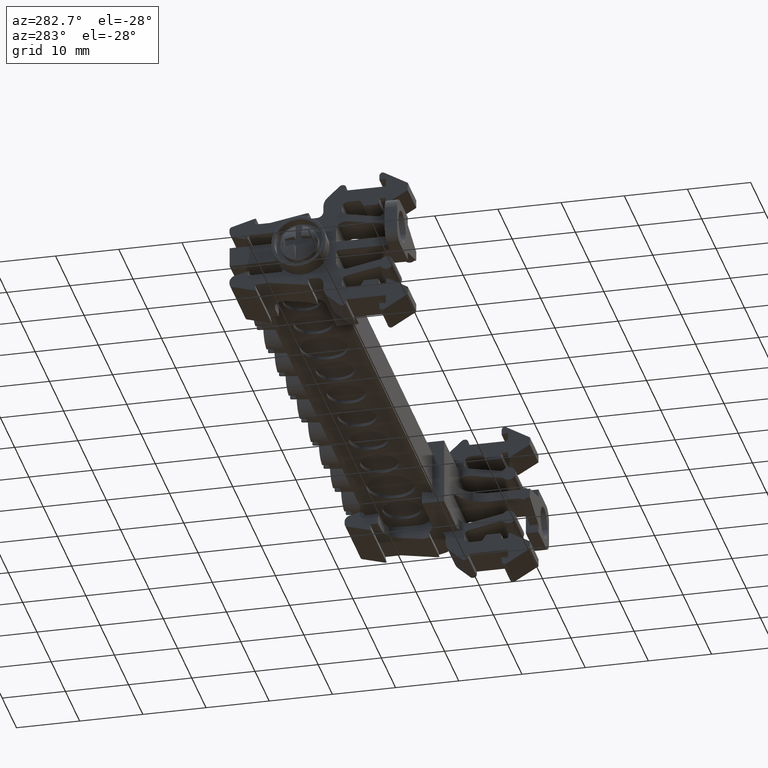
[diagram: clean part render]
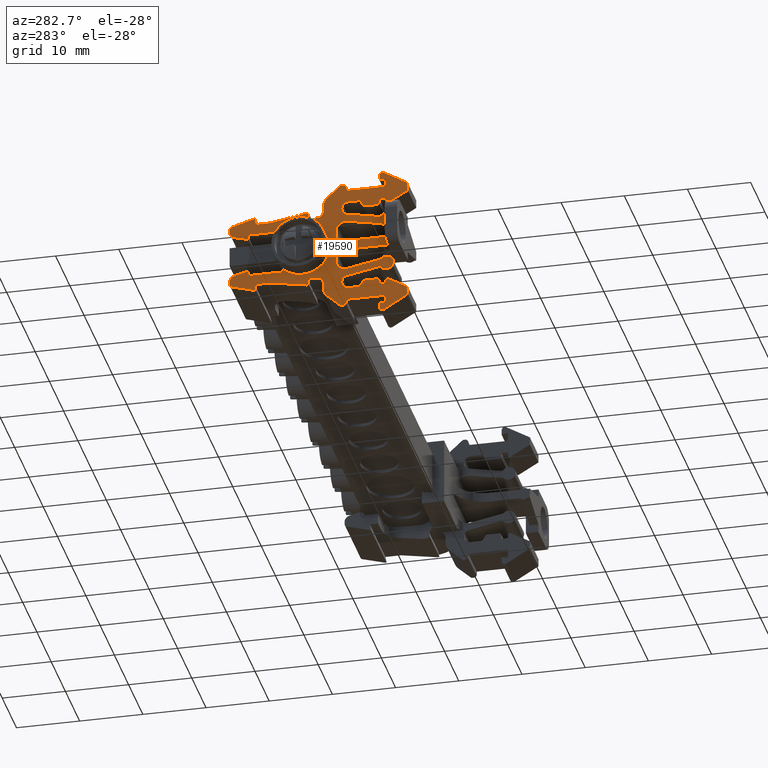
[diagram: same view with one face highlighted and labeled with its STEP entity id]
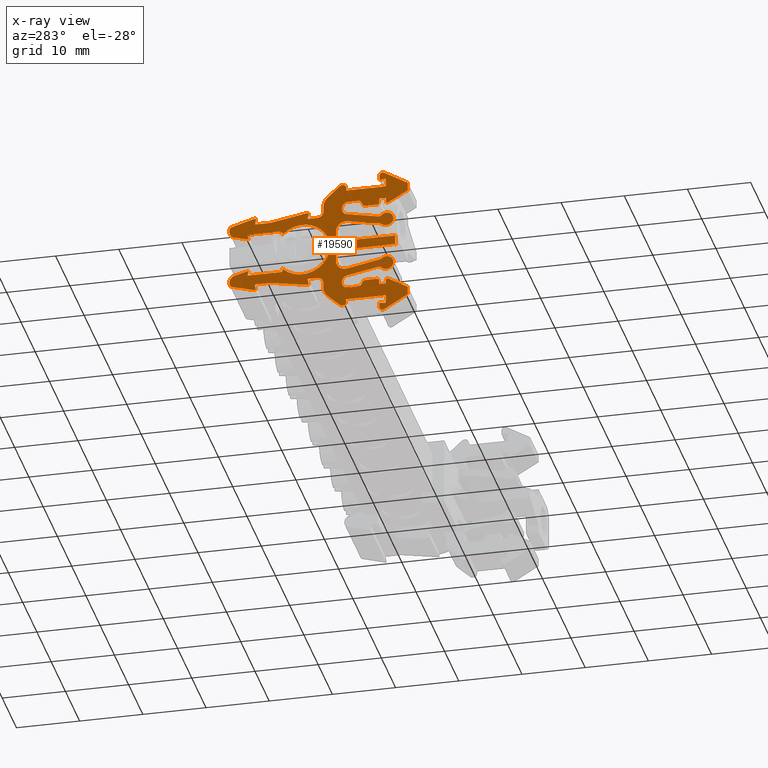
[diagram: x-ray of the same camera — body ghosted, the highlighted face saturated]
A machine part, auxiliary view. The second image highlights one B-rep face of the part: STEP entity #19590.
The next image is the same camera in x-ray: the body ghosted, the highlighted face saturated — about 0% of this face is hidden behind the body in this view.
In plain terms, the highlighted planar face has unit normal (-1, -0, -0).
Its self-contained STEP definition (entity closure, byte-faithful):
#47 = EDGE_CURVE ( 'NONE', #11764, #11745, #16521, .T. ) ;
#126 = EDGE_CURVE ( 'NONE', #8688, #11829, #16377, .T. ) ;
#330 = AXIS2_PLACEMENT_3D ( 'NONE', #1447, #1448, #1449 ) ;
#331 = VECTOR ( 'NONE', #1496, 1000.000000000000000 ) ;
#356 = CIRCLE ( 'NONE', #330, 1.000000000036881200 ) ;
#375 = VECTOR ( 'NONE', #5575, 1000.000000000000200 ) ;
#378 = AXIS2_PLACEMENT_3D ( 'NONE', #5429, #5454, #5490 ) ;
#399 = CIRCLE ( 'NONE', #378, 0.2000000000076732100 ) ;
#405 = CIRCLE ( 'NONE', #429, 0.5000000000182358600 ) ;
#429 = AXIS2_PLACEMENT_3D ( 'NONE', #5746, #5779, #5781 ) ;
#467 = VECTOR ( 'NONE', #4991, 1000.000000000000000 ) ;
#468 = CIRCLE ( 'NONE', #469, 1.000000000036318900 ) ;
#469 = AXIS2_PLACEMENT_3D ( 'NONE', #4964, #4956, #4965 ) ;
#498 = VECTOR ( 'NONE', #5273, 1000.000000000000100 ) ;
#507 = VECTOR ( 'NONE', #5306, 1000.000000000000100 ) ;
#512 = AXIS2_PLACEMENT_3D ( 'NONE', #5169, #5174, #5104 ) ;
#516 = CIRCLE ( 'NONE', #518, 0.5000000000186868300 ) ;
#518 = AXIS2_PLACEMENT_3D ( 'NONE', #5180, #5193, #5239 ) ;
#522 = VECTOR ( 'NONE', #5373, 1000.000000000000000 ) ;
#526 = VECTOR ( 'NONE', #5279, 1000.000000000000000 ) ;
#527 = VECTOR ( 'NONE', #5375, 1000.000000000000000 ) ;
#529 = VECTOR ( 'NONE', #5185, 1000.000000000000000 ) ;
#538 = CIRCLE ( 'NONE', #512, 0.5000000000184092700 ) ;
#541 = VECTOR ( 'NONE', #5161, 1000.000000000000100 ) ;
#545 = VECTOR ( 'NONE', #5350, 1000.000000000000000 ) ;
#1447 = CARTESIAN_POINT ( 'NONE',  ( -118.5753964936862600, -44.29758946941738200, 89.76944206850888000 ) ) ;
#1448 = DIRECTION ( 'NONE',  ( 1.000000000000000000, 1.122594556886344000E-014, 2.537798099621990400E-015 ) ) ;
#1449 = DIRECTION ( 'NONE',  ( -1.387778780730262800E-014, 1.000000000000000000, 0.0000000000000000000 ) ) ;
#1467 = LINE ( 'NONE', #1468, #331 ) ;
#1468 = CARTESIAN_POINT ( 'NONE',  ( -118.5753964936862300, -45.88583688173472600, 88.51944177150640800 ) ) ;
#1496 = DIRECTION ( 'NONE',  ( -1.111883425166246100E-014, 1.000000000000000000, -0.0000000000000000000 ) ) ;
#1770 = AXIS2_PLACEMENT_3D ( 'NONE', #22073, #22049, #22042 ) ;
#1772 = CIRCLE ( 'NONE', #1770, 0.5000000000183955100 ) ;
#1790 = CIRCLE ( 'NONE', #1810, 0.3000000000110622500 ) ;
#1805 = VECTOR ( 'NONE', #22147, 1000.000000000000000 ) ;
#1809 = CIRCLE ( 'NONE', #1840, 1.000000000036457900 ) ;
#1810 = AXIS2_PLACEMENT_3D ( 'NONE', #22110, #22111, #22103 ) ;
#1813 = AXIS2_PLACEMENT_3D ( 'NONE', #22098, #22084, #22086 ) ;
#1815 = CIRCLE ( 'NONE', #1819, 0.2000000000073332000 ) ;
#1816 = CIRCLE ( 'NONE', #1813, 0.2000000000073262600 ) ;
#1819 = AXIS2_PLACEMENT_3D ( 'NONE', #22124, #22109, #22104 ) ;
#1823 = CIRCLE ( 'NONE', #1828, 0.3000000000112565400 ) ;
#1824 = VECTOR ( 'NONE', #22120, 1000.000000000000000 ) ;
#1828 = AXIS2_PLACEMENT_3D ( 'NONE', #22107, #22121, #22105 ) ;
#1840 = AXIS2_PLACEMENT_3D ( 'NONE', #22145, #22205, #22204 ) ;
#1878 = VECTOR ( 'NONE', #22230, 1000.000000000000000 ) ;
#2010 = VECTOR ( 'NONE', #15205, 1000.000000000000000 ) ;
#2013 = VECTOR ( 'NONE', #21999, 1000.000000000000100 ) ;
#2019 = VECTOR ( 'NONE', #15223, 1000.000000000000100 ) ;
#2021 = VECTOR ( 'NONE', #15128, 1000.000000000000100 ) ;
#2023 = VECTOR ( 'NONE', #15266, 1000.000000000000100 ) ;
#2041 = VECTOR ( 'NONE', #22016, 1000.000000000000000 ) ;
#2043 = VECTOR ( 'NONE', #15238, 1000.000000000000000 ) ;
#2066 = AXIS2_PLACEMENT_3D ( 'NONE', #21950, #21955, #21953 ) ;
#2077 = CIRCLE ( 'NONE', #2066, 0.5000000000183885100 ) ;
#2179 = VECTOR ( 'NONE', #6835, 999.9999999999998900 ) ;
#2184 = VECTOR ( 'NONE', #17544, 1000.000000000000100 ) ;
#2185 = VECTOR ( 'NONE', #6843, 1000.000000000000200 ) ;
#2192 = AXIS2_PLACEMENT_3D ( 'NONE', #17625, #17613, #17631 ) ;
#2199 = VECTOR ( 'NONE', #7279, 1000.000000000000100 ) ;
#2204 = VECTOR ( 'NONE', #17640, 1000.000000000000000 ) ;
#2205 = VECTOR ( 'NONE', #6848, 1000.000000000000100 ) ;
#2213 = VECTOR ( 'NONE', #17627, 1000.000000000000100 ) ;
#2220 = VECTOR ( 'NONE', #17652, 1000.000000000000200 ) ;
#2225 = VECTOR ( 'NONE', #17637, 1000.000000000000000 ) ;
#2227 = VECTOR ( 'NONE', #17609, 1000.000000000000000 ) ;
#2231 = CIRCLE ( 'NONE', #2192, 1.007999999999995100 ) ;
#2235 = VECTOR ( 'NONE', #7117, 1000.000000000000000 ) ;
#2271 = VECTOR ( 'NONE', #7060, 1000.000000000000000 ) ;
#2291 = VECTOR ( 'NONE', #7086, 1000.000000000000000 ) ;
#2297 = CIRCLE ( 'NONE', #2308, 0.5000000000187145900 ) ;
#2300 = VECTOR ( 'NONE', #7248, 1000.000000000000000 ) ;
#2301 = VECTOR ( 'NONE', #7221, 1000.000000000000000 ) ;
#2304 = VECTOR ( 'NONE', #7174, 1000.000000000000000 ) ;
#2308 = AXIS2_PLACEMENT_3D ( 'NONE', #7249, #7259, #7247 ) ;
#2324 = VECTOR ( 'NONE', #7185, 1000.000000000000200 ) ;
#2325 = VECTOR ( 'NONE', #7146, 1000.000000000000100 ) ;
#2382 = VECTOR ( 'NONE', #7133, 1000.000000000000100 ) ;
#3368 = ORIENTED_EDGE ( 'NONE', *, *, #9358, .F. ) ;
#3370 = ORIENTED_EDGE ( 'NONE', *, *, #8751, .T. ) ;
#3372 = ORIENTED_EDGE ( 'NONE', *, *, #8809, .T. ) ;
#3374 = ORIENTED_EDGE ( 'NONE', *, *, #18020, .T. ) ;
#3376 = ORIENTED_EDGE ( 'NONE', *, *, #18836, .T. ) ;
#3378 = ORIENTED_EDGE ( 'NONE', *, *, #8770, .T. ) ;
#3380 = ORIENTED_EDGE ( 'NONE', *, *, #9348, .T. ) ;
#3382 = ORIENTED_EDGE ( 'NONE', *, *, #14572, .T. ) ;
#3385 = ORIENTED_EDGE ( 'NONE', *, *, #22435, .T. ) ;
#3387 = ORIENTED_EDGE ( 'NONE', *, *, #14539, .T. ) ;
#3389 = ORIENTED_EDGE ( 'NONE', *, *, #14627, .T. ) ;
#3391 = ORIENTED_EDGE ( 'NONE', *, *, #9531, .F. ) ;
#3393 = ORIENTED_EDGE ( 'NONE', *, *, #8777, .T. ) ;
#3395 = ORIENTED_EDGE ( 'NONE', *, *, #9351, .T. ) ;
#3398 = ORIENTED_EDGE ( 'NONE', *, *, #8755, .F. ) ;
#3400 = ORIENTED_EDGE ( 'NONE', *, *, #8832, .F. ) ;
#3404 = ORIENTED_EDGE ( 'NONE', *, *, #18812, .F. ) ;
#3406 = ORIENTED_EDGE ( 'NONE', *, *, #8789, .T. ) ;
#3408 = ORIENTED_EDGE ( 'NONE', *, *, #9357, .F. ) ;
#3410 = ORIENTED_EDGE ( 'NONE', *, *, #14648, .F. ) ;
#3412 = ORIENTED_EDGE ( 'NONE', *, *, #18806, .F. ) ;
#3414 = ORIENTED_EDGE ( 'NONE', *, *, #9188, .F. ) ;
#3416 = ORIENTED_EDGE ( 'NONE', *, *, #8807, .F. ) ;
#3418 = ORIENTED_EDGE ( 'NONE', *, *, #18924, .F. ) ;
#3422 = ORIENTED_EDGE ( 'NONE', *, *, #18036, .T. ) ;
#3425 = ORIENTED_EDGE ( 'NONE', *, *, #8788, .F. ) ;
#3427 = ORIENTED_EDGE ( 'NONE', *, *, #9529, .F. ) ;
#3429 = ORIENTED_EDGE ( 'NONE', *, *, #18050, .T. ) ;
#3431 = ORIENTED_EDGE ( 'NONE', *, *, #8831, .T. ) ;
#3433 = ORIENTED_EDGE ( 'NONE', *, *, #8785, .T. ) ;
#3437 = ORIENTED_EDGE ( 'NONE', *, *, #18060, .T. ) ;
#3439 = ORIENTED_EDGE ( 'NONE', *, *, #18031, .T. ) ;
#3441 = ORIENTED_EDGE ( 'NONE', *, *, #18942, .T. ) ;
#3443 = ORIENTED_EDGE ( 'NONE', *, *, #18079, .T. ) ;
#3446 = ORIENTED_EDGE ( 'NONE', *, *, #14479, .T. ) ;
#3448 = ORIENTED_EDGE ( 'NONE', *, *, #9354, .F. ) ;
#3450 = ORIENTED_EDGE ( 'NONE', *, *, #8783, .F. ) ;
#3452 = ORIENTED_EDGE ( 'NONE', *, *, #9511, .F. ) ;
#3454 = ORIENTED_EDGE ( 'NONE', *, *, #14635, .T. ) ;
#3456 = ORIENTED_EDGE ( 'NONE', *, *, #9543, .F. ) ;
#3458 = ORIENTED_EDGE ( 'NONE', *, *, #18070, .T. ) ;
#3460 = ORIENTED_EDGE ( 'NONE', *, *, #18047, .T. ) ;
#3462 = ORIENTED_EDGE ( 'NONE', *, *, #18083, .T. ) ;
#3464 = ORIENTED_EDGE ( 'NONE', *, *, #9339, .F. ) ;
#3466 = ORIENTED_EDGE ( 'NONE', *, *, #9516, .T. ) ;
#3468 = ORIENTED_EDGE ( 'NONE', *, *, #8825, .T. ) ;
#3472 = ORIENTED_EDGE ( 'NONE', *, *, #8760, .T. ) ;
#3475 = ORIENTED_EDGE ( 'NONE', *, *, #19014, .T. ) ;
#3477 = ORIENTED_EDGE ( 'NONE', *, *, #22437, .T. ) ;
#3479 = ORIENTED_EDGE ( 'NONE', *, *, #9370, .T. ) ;
#3481 = ORIENTED_EDGE ( 'NONE', *, *, #8804, .T. ) ;
#3485 = ORIENTED_EDGE ( 'NONE', *, *, #8816, .T. ) ;
#3490 = ORIENTED_EDGE ( 'NONE', *, *, #18959, .T. ) ;
#3496 = ORIENTED_EDGE ( 'NONE', *, *, #9542, .T. ) ;
#3502 = ORIENTED_EDGE ( 'NONE', *, *, #18977, .T. ) ;
#3504 = ORIENTED_EDGE ( 'NONE', *, *, #18659, .T. ) ;
#3505 = ORIENTED_EDGE ( 'NONE', *, *, #14637, .F. ) ;
#3507 = ORIENTED_EDGE ( 'NONE', *, *, #9368, .T. ) ;
#3515 = ORIENTED_EDGE ( 'NONE', *, *, #18674, .T. ) ;
#3519 = ORIENTED_EDGE ( 'NONE', *, *, #14631, .T. ) ;
#3525 = ORIENTED_EDGE ( 'NONE', *, *, #22497, .T. ) ;
#3528 = ORIENTED_EDGE ( 'NONE', *, *, #8781, .F. ) ;
#3530 = ORIENTED_EDGE ( 'NONE', *, *, #18840, .T. ) ;
#3533 = ORIENTED_EDGE ( 'NONE', *, *, #18882, .F. ) ;
#3535 = ORIENTED_EDGE ( 'NONE', *, *, #14614, .F. ) ;
#3537 = ORIENTED_EDGE ( 'NONE', *, *, #22495, .F. ) ;
#3539 = ORIENTED_EDGE ( 'NONE', *, *, #14640, .F. ) ;
#3541 = ORIENTED_EDGE ( 'NONE', *, *, #8794, .T. ) ;
#3543 = ORIENTED_EDGE ( 'NONE', *, *, #18922, .F. ) ;
#3546 = ORIENTED_EDGE ( 'NONE', *, *, #8744, .T. ) ;
#3548 = ORIENTED_EDGE ( 'NONE', *, *, #22441, .T. ) ;
#3556 = ORIENTED_EDGE ( 'NONE', *, *, #22434, .F. ) ;
#3562 = ORIENTED_EDGE ( 'NONE', *, *, #8787, .T. ) ;
#3564 = ORIENTED_EDGE ( 'NONE', *, *, #18869, .T. ) ;
#3566 = ORIENTED_EDGE ( 'NONE', *, *, #9385, .T. ) ;
#3568 = ORIENTED_EDGE ( 'NONE', *, *, #18891, .T. ) ;
#3576 = ORIENTED_EDGE ( 'NONE', *, *, #9526, .T. ) ;
#3578 = ORIENTED_EDGE ( 'NONE', *, *, #8757, .T. ) ;
#3580 = ORIENTED_EDGE ( 'NONE', *, *, #22406, .T. ) ;
#3584 = ORIENTED_EDGE ( 'NONE', *, *, #8741, .T. ) ;
#3586 = ORIENTED_EDGE ( 'NONE', *, *, #9548, .F. ) ;
#3588 = ORIENTED_EDGE ( 'NONE', *, *, #18858, .T. ) ;
#3591 = ORIENTED_EDGE ( 'NONE', *, *, #22475, .T. ) ;
#3593 = ORIENTED_EDGE ( 'NONE', *, *, #8810, .T. ) ;
#3597 = ORIENTED_EDGE ( 'NONE', *, *, #14619, .F. ) ;
#4574 = ORIENTED_EDGE ( 'NONE', *, *, #9190, .F. ) ;
#4575 = ORIENTED_EDGE ( 'NONE', *, *, #14512, .T. ) ;
#4576 = ORIENTED_EDGE ( 'NONE', *, *, #9200, .T. ) ;
#4577 = ORIENTED_EDGE ( 'NONE', *, *, #18057, .T. ) ;
#4578 = ORIENTED_EDGE ( 'NONE', *, *, #8743, .T. ) ;
#4579 = ORIENTED_EDGE ( 'NONE', *, *, #22422, .T. ) ;
#4581 = ORIENTED_EDGE ( 'NONE', *, *, #17859, .T. ) ;
#4582 = ORIENTED_EDGE ( 'NONE', *, *, #18025, .T. ) ;
#4583 = ORIENTED_EDGE ( 'NONE', *, *, #17707, .T. ) ;
#4584 = ORIENTED_EDGE ( 'NONE', *, *, #18046, .T. ) ;
#4587 = ORIENTED_EDGE ( 'NONE', *, *, #19043, .F. ) ;
#4588 = ORIENTED_EDGE ( 'NONE', *, *, #17722, .T. ) ;
#4590 = ORIENTED_EDGE ( 'NONE', *, *, #8814, .T. ) ;
#4591 = ORIENTED_EDGE ( 'NONE', *, *, #18072, .T. ) ;
#4592 = ORIENTED_EDGE ( 'NONE', *, *, #18064, .T. ) ;
#4593 = ORIENTED_EDGE ( 'NONE', *, *, #8742, .T. ) ;
#4594 = ORIENTED_EDGE ( 'NONE', *, *, #8815, .T. ) ;
#4596 = ORIENTED_EDGE ( 'NONE', *, *, #17755, .T. ) ;
#4597 = ORIENTED_EDGE ( 'NONE', *, *, #8793, .T. ) ;
#4598 = ORIENTED_EDGE ( 'NONE', *, *, #14477, .T. ) ;
#4599 = ORIENTED_EDGE ( 'NONE', *, *, #14621, .T. ) ;
#4600 = ORIENTED_EDGE ( 'NONE', *, *, #14574, .T. ) ;
#4601 = ORIENTED_EDGE ( 'NONE', *, *, #18029, .T. ) ;
#4603 = ORIENTED_EDGE ( 'NONE', *, *, #47, .T. ) ;
#4604 = ORIENTED_EDGE ( 'NONE', *, *, #8771, .F. ) ;
#4605 = ORIENTED_EDGE ( 'NONE', *, *, #9181, .T. ) ;
#4606 = ORIENTED_EDGE ( 'NONE', *, *, #18068, .T. ) ;
#4607 = ORIENTED_EDGE ( 'NONE', *, *, #8812, .T. ) ;
#4608 = ORIENTED_EDGE ( 'NONE', *, *, #14617, .F. ) ;
#4609 = ORIENTED_EDGE ( 'NONE', *, *, #22446, .T. ) ;
#4611 = ORIENTED_EDGE ( 'NONE', *, *, #9222, .T. ) ;
#4612 = ORIENTED_EDGE ( 'NONE', *, *, #8772, .F. ) ;
#4613 = ORIENTED_EDGE ( 'NONE', *, *, #8833, .T. ) ;
#4614 = ORIENTED_EDGE ( 'NONE', *, *, #9173, .T. ) ;
#4615 = ORIENTED_EDGE ( 'NONE', *, *, #9195, .F. ) ;
#4617 = ORIENTED_EDGE ( 'NONE', *, *, #19029, .F. ) ;
#4618 = ORIENTED_EDGE ( 'NONE', *, *, #9198, .F. ) ;
#4619 = ORIENTED_EDGE ( 'NONE', *, *, #8782, .F. ) ;
#4621 = ORIENTED_EDGE ( 'NONE', *, *, #17736, .T. ) ;
#4622 = ORIENTED_EDGE ( 'NONE', *, *, #14615, .F. ) ;
#4623 = ORIENTED_EDGE ( 'NONE', *, *, #126, .F. ) ;
#4624 = ORIENTED_EDGE ( 'NONE', *, *, #9168, .T. ) ;
#4625 = ORIENTED_EDGE ( 'NONE', *, *, #22443, .T. ) ;
#4626 = ORIENTED_EDGE ( 'NONE', *, *, #18863, .F. ) ;
#4627 = ORIENTED_EDGE ( 'NONE', *, *, #14629, .T. ) ;
#4629 = ORIENTED_EDGE ( 'NONE', *, *, #9172, .T. ) ;
#4630 = ORIENTED_EDGE ( 'NONE', *, *, #22482, .T. ) ;
#4631 = ORIENTED_EDGE ( 'NONE', *, *, #18095, .T. ) ;
#4632 = ORIENTED_EDGE ( 'NONE', *, *, #14500, .T. ) ;
#4664 = VECTOR ( 'NONE', #10607, 1000.000000000000000 ) ;
#4692 = AXIS2_PLACEMENT_3D ( 'NONE', #6318, #6320, #6444 ) ;
#4742 = CIRCLE ( 'NONE', #4799, 0.5000000000183400000 ) ;
#4744 = CIRCLE ( 'NONE', #4752, 1.019999999999993100 ) ;
#4752 = AXIS2_PLACEMENT_3D ( 'NONE', #6025, #6013, #5992 ) ;
#4799 = AXIS2_PLACEMENT_3D ( 'NONE', #5859, #5861, #5839 ) ;
#4802 = VECTOR ( 'NONE', #6039, 1000.000000000000100 ) ;
#4822 = CIRCLE ( 'NONE', #4836, 2.000000000073456800 ) ;
#4831 = VECTOR ( 'NONE', #13719, 1000.000000000000000 ) ;
#4833 = AXIS2_PLACEMENT_3D ( 'NONE', #6128, #6071, #6106 ) ;
#4836 = AXIS2_PLACEMENT_3D ( 'NONE', #6108, #6127, #6041 ) ;
#4837 = VECTOR ( 'NONE', #6186, 1000.000000000000000 ) ;
#4855 = CIRCLE ( 'NONE', #4833, 0.5000000000182636100 ) ;
#4858 = VECTOR ( 'NONE', #6179, 1000.000000000000100 ) ;
#4869 = AXIS2_PLACEMENT_3D ( 'NONE', #13843, #13824, #13846 ) ;
#4881 = CIRCLE ( 'NONE', #4882, 0.5000000000186035600 ) ;
#4882 = AXIS2_PLACEMENT_3D ( 'NONE', #13834, #13849, #13813 ) ;
#4884 = VECTOR ( 'NONE', #13780, 1000.000000000000100 ) ;
#4891 = CIRCLE ( 'NONE', #4869, 1.500000000055352800 ) ;
#4950 = CARTESIAN_POINT ( 'NONE',  ( -118.5753964936862300, -45.88583688173472600, 90.76944154512116800 ) ) ;
#4956 = DIRECTION ( 'NONE',  ( 1.000000000000000000, 1.122594556886344000E-014, 2.537798099621990400E-015 ) ) ;
#4964 = CARTESIAN_POINT ( 'NONE',  ( -118.5753964936862000, -49.21707803139443600, 89.51944179387678000 ) ) ;
#4965 = DIRECTION ( 'NONE',  ( -1.387778780731043000E-014, 1.000000000000000000, 0.0000000000000000000 ) ) ;
#4967 = LINE ( 'NONE', #4950, #467 ) ;
#4991 = DIRECTION ( 'NONE',  ( 1.111883425166246100E-014, -1.000000000000000000, 0.0000000000000000000 ) ) ;
#5079 = CARTESIAN_POINT ( 'NONE',  ( -118.5753964936864000, -30.66891902962441900, 99.70702896610026800 ) ) ;
#5089 = CARTESIAN_POINT ( 'NONE',  ( -118.5753964936861100, -56.66053994747041900, 96.86017340213371100 ) ) ;
#5099 = CARTESIAN_POINT ( 'NONE',  ( -118.5753964936864300, -30.88215368367637100, 92.52646507583807500 ) ) ;
#5104 = DIRECTION ( 'NONE',  ( 0.0000000000000000000, 1.000000000000000000, 0.0000000000000000000 ) ) ;
#5105 = CARTESIAN_POINT ( 'NONE',  ( -118.5753964936863800, -30.44258989760491800, 91.69826748458962100 ) ) ;
#5110 = CARTESIAN_POINT ( 'NONE',  ( -118.5753964936863100, -30.96957565555327500, 92.58562298628568500 ) ) ;
#5111 = CARTESIAN_POINT ( 'NONE',  ( -118.5753964936863100, -31.07310065554321800, 92.63453932100578900 ) ) ;
#5114 = CARTESIAN_POINT ( 'NONE',  ( -118.5753964936864300, -31.18377085252979700, 92.66419331091427100 ) ) ;
#5139 = CARTESIAN_POINT ( 'NONE',  ( -118.5753964936864000, -29.15121724636091800, 71.26051926434917000 ) ) ;
#5159 = LINE ( 'NONE', #5139, #541 ) ;
#5161 = DIRECTION ( 'NONE',  ( 0.0000000000000000000, 0.1736478832043744900, -0.9848078049338561100 ) ) ;
#5162 = CARTESIAN_POINT ( 'NONE',  ( -118.5753964936863700, -30.53406795571251600, 92.11611772861542100 ) ) ;
#5169 = CARTESIAN_POINT ( 'NONE',  ( -118.5753964936864100, -30.94258989762337100, 91.26944198721018600 ) ) ;
#5174 = DIRECTION ( 'NONE',  ( 1.000000000000000000, 1.122594556886344000E-014, 2.537798099621990400E-015 ) ) ;
#5178 = CARTESIAN_POINT ( 'NONE',  ( -118.5753964936863400, -30.96957565555172200, 99.45326117581768700 ) ) ;
#5179 = CARTESIAN_POINT ( 'NONE',  ( -118.5753964936861700, -54.16053974086307200, 106.7385275152383600 ) ) ;
#5180 = CARTESIAN_POINT ( 'NONE',  ( -118.5753964936864300, -30.94258989762337100, 100.7694419875528000 ) ) ;
#5185 = DIRECTION ( 'NONE',  ( -1.111883425166246100E-014, 1.000000000000000000, -0.0000000000000000000 ) ) ;
#5188 = CARTESIAN_POINT ( 'NONE',  ( -118.5753964936863400, -31.07310065554183300, 99.40434484109908900 ) ) ;
#5190 = CARTESIAN_POINT ( 'NONE',  ( -118.5753964936862700, -45.88583688173472600, 106.5354419102346700 ) ) ;
#5193 = DIRECTION ( 'NONE',  ( 1.000000000000000000, 1.122594556886344000E-014, 2.537798099621990400E-015 ) ) ;
#5194 = CARTESIAN_POINT ( 'NONE',  ( -118.5753964936861400, -55.16053989854453500, 106.6765033483969800 ) ) ;
#5195 = LINE ( 'NONE', #5252, #522 ) ;
#5196 = CARTESIAN_POINT ( 'NONE',  ( -118.5753964936862300, -48.21707794391830500, 102.5194420270087400 ) ) ;
#5204 = CARTESIAN_POINT ( 'NONE',  ( -118.5753964936864100, -31.18377088593155800, 99.37469097585055500 ) ) ;
#5219 = LINE ( 'NONE', #5234, #526 ) ;
#5234 = CARTESIAN_POINT ( 'NONE',  ( -118.5753964936862300, -45.88583688173472600, 89.76944207269141900 ) ) ;
#5239 = DIRECTION ( 'NONE',  ( 0.0000000000000000000, 1.000000000000000000, 0.0000000000000000000 ) ) ;
#5252 = CARTESIAN_POINT ( 'NONE',  ( -118.5753964936862600, -45.29757271717392100, 68.30975968870971800 ) ) ;
#5258 = CARTESIAN_POINT ( 'NONE',  ( -118.5753964936864100, -30.88215368367517400, 99.51241908626698800 ) ) ;
#5260 = LINE ( 'NONE', #5190, #529 ) ;
#5264 = LINE ( 'NONE', #5269, #498 ) ;
#5269 = CARTESIAN_POINT ( 'NONE',  ( -118.5753964936861600, -54.09701029757952300, 102.7932954076429700 ) ) ;
#5270 = CARTESIAN_POINT ( 'NONE',  ( -118.5753964936862700, -44.29758944409086800, 101.2694420081582800 ) ) ;
#5273 = DIRECTION ( 'NONE',  ( 0.0000000000000000000, -0.08715553781152883500, 0.9961947160213122700 ) ) ;
#5276 = CARTESIAN_POINT ( 'NONE',  ( -118.5753964936861400, -51.24545583683904900, 88.76944202857311000 ) ) ;
#5279 = DIRECTION ( 'NONE',  ( 1.111883425166246100E-014, -1.000000000000000000, 0.0000000000000000000 ) ) ;
#5285 = CARTESIAN_POINT ( 'NONE',  ( -118.5753964936861800, -51.24545566317779300, 103.2694420537116900 ) ) ;
#5291 = CARTESIAN_POINT ( 'NONE',  ( -118.5753964936861400, -54.16053975375717800, 88.51944177150639300 ) ) ;
#5293 = CARTESIAN_POINT ( 'NONE',  ( -118.5753964936864300, -30.88215368367637100, 92.52646507583807500 ) ) ;
#5295 = CARTESIAN_POINT ( 'NONE',  ( -118.5753964936861400, -54.16053974086310100, 103.5194419876542000 ) ) ;
#5297 = CARTESIAN_POINT ( 'NONE',  ( -118.5753964936861100, -55.16053997683810200, 88.51944177150643600 ) ) ;
#5302 = CARTESIAN_POINT ( 'NONE',  ( -118.5753964936864100, -30.88215368367517400, 99.51241908626698800 ) ) ;
#5306 = DIRECTION ( 'NONE',  ( 0.0000000000000000000, -0.08715566094580519400, -0.9961947052484768600 ) ) ;
#5307 = CARTESIAN_POINT ( 'NONE',  ( -118.5753964936861600, -54.92581032773766500, 106.8734649104213200 ) ) ;
#5314 = CARTESIAN_POINT ( 'NONE',  ( -118.5753964936864300, -30.44258989760470200, 100.7694419875528000 ) ) ;
#5316 = LINE ( 'NONE', #5363, #507 ) ;
#5317 = CARTESIAN_POINT ( 'NONE',  ( -118.5753964936862800, -42.79759074339079200, 101.2694419440434500 ) ) ;
#5318 = LINE ( 'NONE', #5331, #545 ) ;
#5324 = CARTESIAN_POINT ( 'NONE',  ( -118.5753964936861400, -50.81244316652218600, 88.51944197905757500 ) ) ;
#5329 = CARTESIAN_POINT ( 'NONE',  ( -118.5753964936864000, -45.88583688173472600, 102.2694420894127900 ) ) ;
#5331 = CARTESIAN_POINT ( 'NONE',  ( -118.5753964936861700, -54.16053198321012000, 68.30975774108458200 ) ) ;
#5340 = CARTESIAN_POINT ( 'NONE',  ( -118.5753964936861100, -54.16053975375724100, 85.30035670588797800 ) ) ;
#5345 = CARTESIAN_POINT ( 'NONE',  ( -118.5753964936861400, -55.16053996394395400, 103.5194419876542200 ) ) ;
#5350 = DIRECTION ( 'NONE',  ( 0.0000000000000000000, -2.018709680339304800E-007, 0.9999999999999796800 ) ) ;
#5351 = CARTESIAN_POINT ( 'NONE',  ( -118.5753964936862600, -42.79758601899735700, 90.76944147375176900 ) ) ;
#5355 = CARTESIAN_POINT ( 'NONE',  ( -118.5753964936862600, -45.29758946945398900, 102.2694417244419800 ) ) ;
#5359 = CARTESIAN_POINT ( 'NONE',  ( -118.5753964936861100, -55.16053997683811600, 85.36238032700561000 ) ) ;
#5363 = CARTESIAN_POINT ( 'NONE',  ( -118.5753964936861600, -55.16053996394394700, 103.5194419876542200 ) ) ;
#5365 = LINE ( 'NONE', #5329, #527 ) ;
#5373 = DIRECTION ( 'NONE',  ( 0.0000000000000000000, -4.932990846792050800E-007, 0.9999999999998783200 ) ) ;
#5375 = DIRECTION ( 'NONE',  ( 3.778080753672560300E-045, -1.000000000000000000, -1.488723927342885200E-030 ) ) ;
#5392 = CARTESIAN_POINT ( 'NONE',  ( -118.5753964936862600, -44.29758944409084600, 90.76944174705079100 ) ) ;
#5396 = CARTESIAN_POINT ( 'NONE',  ( -118.5753964936862600, -48.39155216239439700, 106.5354419102346500 ) ) ;
#5420 = CARTESIAN_POINT ( 'NONE',  ( -118.5753964936864100, -30.44258989760494000, 91.26944198721018600 ) ) ;
#5429 = CARTESIAN_POINT ( 'NONE',  ( -118.5753964936861000, -54.96053997683053900, 85.36238036855667100 ) ) ;
#5439 = CARTESIAN_POINT ( 'NONE',  ( -118.5753964936861000, -54.92581033235572400, 85.16541881952306900 ) ) ;
#5448 = CARTESIAN_POINT ( 'NONE',  ( -118.5753964936862400, -45.29758946945415200, 89.76944221321814200 ) ) ;
#5454 = DIRECTION ( 'NONE',  ( 1.000000000000000000, 1.122594556886344000E-014, 2.537798099621990400E-015 ) ) ;
#5473 = CARTESIAN_POINT ( 'NONE',  ( -118.5753964936862800, -42.97391348253789500, 102.2694420894127900 ) ) ;
#5481 = CARTESIAN_POINT ( 'NONE',  ( -118.5753964936862300, -45.29758968380541300, 88.90038993610014000 ) ) ;
#5487 = CARTESIAN_POINT ( 'NONE',  ( -118.5753964936861400, -54.09701029757953000, 102.7932954076429600 ) ) ;
#5490 = DIRECTION ( 'NONE',  ( 0.0000000000000000000, 1.000000000000000000, 0.0000000000000000000 ) ) ;
#5491 = CARTESIAN_POINT ( 'NONE',  ( -118.5753964936864100, -31.18377088593155800, 99.37469097585055500 ) ) ;
#5495 = CARTESIAN_POINT ( 'NONE',  ( -118.5753964936862600, -48.89155204794706600, 106.0354419499387000 ) ) ;
#5498 = CARTESIAN_POINT ( 'NONE',  ( -118.5753964936864100, -30.89492487859679700, 90.77171912659439100 ) ) ;
#5500 = CARTESIAN_POINT ( 'NONE',  ( -118.5753964936861400, -55.16053989854454200, 105.7274420434490300 ) ) ;
#5502 = CARTESIAN_POINT ( 'NONE',  ( -118.5753964936862000, -51.59186571542915800, 102.6694421940336200 ) ) ;
#5504 = CARTESIAN_POINT ( 'NONE',  ( -118.5753964936862000, -48.21707803135908700, 89.51944070880618700 ) ) ;
#5510 = CARTESIAN_POINT ( 'NONE',  ( -118.5753964936864000, -34.61891742302813700, 102.2694420894127900 ) ) ;
#5514 = CARTESIAN_POINT ( 'NONE',  ( -118.5753964936861100, -55.22216525400077100, 89.22382232052231600 ) ) ;
#5518 = CARTESIAN_POINT ( 'NONE',  ( -118.5753964936862000, -48.39155111648821600, 85.50344225065613600 ) ) ;
#5532 = CARTESIAN_POINT ( 'NONE',  ( -118.5753964936861100, -55.16053997683820100, 86.31144203717180100 ) ) ;
#5546 = CARTESIAN_POINT ( 'NONE',  ( -118.5753964936862000, -48.24130023330081900, 85.50344259688638700 ) ) ;
#5550 = CARTESIAN_POINT ( 'NONE',  ( -118.5753964936862600, -45.29758989815714200, 103.1384948378474600 ) ) ;
#5554 = CARTESIAN_POINT ( 'NONE',  ( -118.5753964936861800, -48.89155226868052000, 86.00344236511170900 ) ) ;
#5556 = CARTESIAN_POINT ( 'NONE',  ( -118.5753964936863600, -34.38262018978241500, 89.76944207269141900 ) ) ;
#5558 = CARTESIAN_POINT ( 'NONE',  ( -118.5753964936864300, -30.89492487859595800, 101.2671648481687800 ) ) ;
#5564 = CARTESIAN_POINT ( 'NONE',  ( -118.5753964936862600, -42.97391744704172100, 89.76944219618418700 ) ) ;
#5567 = CARTESIAN_POINT ( 'NONE',  ( -118.5753964936862600, -48.24130177254144800, 106.5354419896790100 ) ) ;
#5569 = CARTESIAN_POINT ( 'NONE',  ( -118.5753964936861100, -55.22216519486444500, 102.8150617088920700 ) ) ;
#5575 = DIRECTION ( 'NONE',  ( 0.0000000000000000000, 0.9848077451303122200, 0.1736482223673764800 ) ) ;
#5577 = CARTESIAN_POINT ( 'NONE',  ( -118.5753964936861100, -54.92581033235572400, 85.16541881952308300 ) ) ;
#5579 = CARTESIAN_POINT ( 'NONE',  ( -118.5753964936862300, -48.21707803135858200, 102.3582724420334100 ) ) ;
#5584 = LINE ( 'NONE', #5577, #375 ) ;
#5607 = CARTESIAN_POINT ( 'NONE',  ( -118.5753964936860900, -54.16053983257941700, 84.51944025711426900 ) ) ;
#5620 = CARTESIAN_POINT ( 'NONE',  ( -118.5753964936863000, -38.84917688143642100, 92.76706121351475100 ) ) ;
#5630 = CARTESIAN_POINT ( 'NONE',  ( -118.5753964936863600, -34.61891742302810800, 89.76944207269144700 ) ) ;
#5638 = CARTESIAN_POINT ( 'NONE',  ( -118.5753964936864000, -34.38262018978255700, 102.2694420894127500 ) ) ;
#5640 = CARTESIAN_POINT ( 'NONE',  ( -118.5753964936864300, -31.18377085252979700, 92.66419331091427100 ) ) ;
#5654 = CARTESIAN_POINT ( 'NONE',  ( -118.5753964936861700, -48.21707785647846800, 89.68061048292189200 ) ) ;
#5656 = CARTESIAN_POINT ( 'NONE',  ( -118.5753964936861700, -54.16053989850741600, 107.5194438271389000 ) ) ;
#5658 = CARTESIAN_POINT ( 'NONE',  ( -118.5753964936861400, -54.09701030872744800, 89.24558864610673900 ) ) ;
#5663 = CARTESIAN_POINT ( 'NONE',  ( -118.5753964936864000, -34.44259070682065300, 101.2694418410073600 ) ) ;
#5683 = CARTESIAN_POINT ( 'NONE',  ( -118.5753964936861400, -51.59186575260268600, 89.36944192647175100 ) ) ;
#5687 = CARTESIAN_POINT ( 'NONE',  ( -118.5753964936863600, -34.44259071128587400, 90.76944183380700800 ) ) ;
#5717 = CARTESIAN_POINT ( 'NONE',  ( -118.5753964936863400, -38.84917718013377900, 99.27182295372341500 ) ) ;
#5746 = CARTESIAN_POINT ( 'NONE',  ( -118.5753964936861400, -50.81244311099683800, 89.01944198712696700 ) ) ;
#5768 = CARTESIAN_POINT ( 'NONE',  ( -118.5753964936863000, -38.84917660056169800, 93.00656151496333700 ) ) ;
#5779 = DIRECTION ( 'NONE',  ( 1.000000000000000000, 1.122594556886344000E-014, 2.537798099621990400E-015 ) ) ;
#5781 = DIRECTION ( 'NONE',  ( 0.0000000000000000000, 1.000000000000000000, 0.0000000000000000000 ) ) ;
#5794 = CARTESIAN_POINT ( 'NONE',  ( -118.5753964936862600, -47.90374423001227200, 106.4042982573353400 ) ) ;
#5799 = CARTESIAN_POINT ( 'NONE',  ( -118.5753964936861400, -54.28811458947961900, 99.14341211603292000 ) ) ;
#5800 = CARTESIAN_POINT ( 'NONE',  ( -118.5753964936863800, -33.44259048820337200, 98.76944212628311000 ) ) ;
#5802 = CARTESIAN_POINT ( 'NONE',  ( -118.5753964936862000, -51.85167331173305200, 102.5194422265384700 ) ) ;
#5803 = CARTESIAN_POINT ( 'NONE',  ( -118.5753964936861300, -58.64466688616821700, 105.7433548322886200 ) ) ;
#5805 = CARTESIAN_POINT ( 'NONE',  ( -118.5753964936861100, -56.24258989761995100, 95.26944208695967100 ) ) ;
#5806 = CARTESIAN_POINT ( 'NONE',  ( -118.5753964936862300, -48.29758989826820000, 100.0893750927338300 ) ) ;
#5812 = CARTESIAN_POINT ( 'NONE',  ( -118.5753964936863000, -42.57940743221756500, 102.2694422057761600 ) ) ;
#5822 = CARTESIAN_POINT ( 'NONE',  ( -118.5753964936862100, -49.05806216479166400, 100.1523731598822300 ) ) ;
#5827 = CARTESIAN_POINT ( 'NONE',  ( -118.5753964936862100, -49.04342984413281700, 101.3734649619433100 ) ) ;
#5838 = CARTESIAN_POINT ( 'NONE',  ( -118.5753964936861300, -54.46873406097415700, 100.5674718350277600 ) ) ;
#5839 = DIRECTION ( 'NONE',  ( 0.0000000000000000000, 1.000000000000000000, 0.0000000000000000000 ) ) ;
#5840 = CARTESIAN_POINT ( 'NONE',  ( -118.5753964936861300, -55.52140414134586200, 102.6592877677450000 ) ) ;
#5842 = CARTESIAN_POINT ( 'NONE',  ( -118.5753964936861400, -54.53964225596736500, 99.01913605656342600 ) ) ;
#5852 = CARTESIAN_POINT ( 'NONE',  ( -118.5753964936863700, -33.44259048820436000, 93.26944199218017700 ) ) ;
#5859 = CARTESIAN_POINT ( 'NONE',  ( -118.5753964936861300, -54.09815130792952000, 100.9031330081833900 ) ) ;
#5860 = CARTESIAN_POINT ( 'NONE',  ( -118.5753964936862000, -48.29758989826771700, 91.94950888202988900 ) ) ;
#5861 = DIRECTION ( 'NONE',  ( 1.000000000000000000, 1.122594556886344000E-014, 2.537798099621990400E-015 ) ) ;
#5864 = CARTESIAN_POINT ( 'NONE',  ( -118.5753964936861400, -54.96083814698978600, 105.5274422914679500 ) ) ;
#5881 = CARTESIAN_POINT ( 'NONE',  ( -118.5753964936861300, -54.01132721908848600, 100.4107291316599800 ) ) ;
#5883 = CARTESIAN_POINT ( 'NONE',  ( -118.5753964936863600, -36.90812700716703200, 101.2694418030213400 ) ) ;
#5897 = CARTESIAN_POINT ( 'NONE',  ( -118.5753964936861400, -51.85167338874594400, 89.51944199458746700 ) ) ;
#5900 = CARTESIAN_POINT ( 'NONE',  ( -118.5753964936861700, -54.98107746015174500, 107.9031828437536400 ) ) ;
#5903 = CARTESIAN_POINT ( 'NONE',  ( -118.5753964936863300, -36.90812626222194800, 90.76944180996243000 ) ) ;
#5907 = CARTESIAN_POINT ( 'NONE',  ( -118.5753964936861400, -53.79815188276196400, 102.5194421477572600 ) ) ;
#5913 = CARTESIAN_POINT ( 'NONE',  ( -118.5753964936861100, -58.64466688616821700, 104.4625044931519800 ) ) ;
#5929 = CARTESIAN_POINT ( 'NONE',  ( -118.5753964936862000, -45.94735966521847100, 87.42496514365716100 ) ) ;
#5931 = CARTESIAN_POINT ( 'NONE',  ( -118.5753964936861100, -55.52140419083083600, 89.37959624491456600 ) ) ;
#5938 = CARTESIAN_POINT ( 'NONE',  ( -118.5753964936861400, -54.53964225596720200, 93.01974791819975500 ) ) ;
#5941 = CARTESIAN_POINT ( 'NONE',  ( -118.5753964936861100, -54.96065835817636000, 86.51144207265741700 ) ) ;
#5951 = CARTESIAN_POINT ( 'NONE',  ( -118.5753964936862400, -47.29758990692386800, 98.67516153030817300 ) ) ;
#5954 = CARTESIAN_POINT ( 'NONE',  ( -118.5753964936862100, -49.05806214138510100, 91.88651059802495500 ) ) ;
#5962 = CARTESIAN_POINT ( 'NONE',  ( -118.5753964936861400, -54.46873406097420700, 91.47141213973553400 ) ) ;
#5968 = CARTESIAN_POINT ( 'NONE',  ( -118.5753964936862000, -47.90374396131449700, 85.63458631337809400 ) ) ;
#5973 = CARTESIAN_POINT ( 'NONE',  ( -118.5753964936862400, -45.94735961207192800, 104.6139190883541500 ) ) ;
#5977 = CARTESIAN_POINT ( 'NONE',  ( -118.5753964936861600, -49.04342985372093000, 90.66541880934177300 ) ) ;
#5983 = CARTESIAN_POINT ( 'NONE',  ( -118.5753964936860700, -58.64466689906232200, 86.29552938883748000 ) ) ;
#5985 = CARTESIAN_POINT ( 'NONE',  ( -118.5753964936862400, -48.89155219785391900, 105.5274422914679600 ) ) ;
#5992 = DIRECTION ( 'NONE',  ( 1.360567432138681400E-014, -1.000000000000000000, 0.0000000000000000000 ) ) ;
#6008 = CARTESIAN_POINT ( 'NONE',  ( -118.5753964936862700, -42.57940842840974900, 89.76944246020663300 ) ) ;
#6013 = DIRECTION ( 'NONE',  ( 1.000000000000000000, 1.123605221868002000E-014, 2.589419078425440300E-015 ) ) ;
#6025 = CARTESIAN_POINT ( 'NONE',  ( -118.5753964936861100, -56.24258989761992900, 94.24944204099136900 ) ) ;
#6028 = CARTESIAN_POINT ( 'NONE',  ( -118.5753964936861400, -53.79815186777129600, 89.51944199458746700 ) ) ;
#6035 = CARTESIAN_POINT ( 'NONE',  ( -118.5753964936863700, -33.30152837966561200, 92.46944213709116400 ) ) ;
#6039 = DIRECTION ( 'NONE',  ( -1.147286948606217200E-014, 0.9611011415393244700, -0.2761966613335640800 ) ) ;
#6041 = DIRECTION ( 'NONE',  ( -1.387778780730474800E-014, 1.000000000000000000, 0.0000000000000000000 ) ) ;
#6046 = CARTESIAN_POINT ( 'NONE',  ( -118.5753964936862000, -48.29758989826771700, 91.94950888202988900 ) ) ;
#6047 = CARTESIAN_POINT ( 'NONE',  ( -118.5753964936860900, -58.64466689906232200, 87.57637972797438400 ) ) ;
#6054 = CARTESIAN_POINT ( 'NONE',  ( -118.5753964936862400, -47.31643215351402200, 93.08819914560957900 ) ) ;
#6056 = LINE ( 'NONE', #6161, #4837 ) ;
#6057 = CARTESIAN_POINT ( 'NONE',  ( -118.5753964936861400, -54.28811458948043600, 92.89547185873037400 ) ) ;
#6063 = CARTESIAN_POINT ( 'NONE',  ( -118.5753964936862100, -48.21228471264762300, 91.97966881963968400 ) ) ;
#6065 = CARTESIAN_POINT ( 'NONE',  ( -118.5753964936862300, -47.61289858575872100, 92.43159824170858500 ) ) ;
#6068 = CARTESIAN_POINT ( 'NONE',  ( -118.5753964936861000, -54.98107747304463500, 84.13570119003084400 ) ) ;
#6070 = CARTESIAN_POINT ( 'NONE',  ( -118.5753964936861600, -54.01132721909124300, 91.62815484310372900 ) ) ;
#6071 = DIRECTION ( 'NONE',  ( 1.000000000000000000, 1.122594556886344000E-014, 2.537798099621990400E-015 ) ) ;
#6076 = CARTESIAN_POINT ( 'NONE',  ( -118.5753964936862100, -47.29758990475075800, 93.36372244445496400 ) ) ;
#6079 = CARTESIAN_POINT ( 'NONE',  ( -118.5753964936862100, -47.29758990475075800, 93.36372244445496400 ) ) ;
#6087 = CARTESIAN_POINT ( 'NONE',  ( -118.5753964936863100, -38.55155808404350600, 92.46944213709116400 ) ) ;
#6090 = CARTESIAN_POINT ( 'NONE',  ( -118.5753964936862300, -47.71718111209742100, 92.31008904023538300 ) ) ;
#6092 = CARTESIAN_POINT ( 'NONE',  ( -118.5753964936862300, -47.45223095862642300, 92.68375306367251200 ) ) ;
#6094 = CARTESIAN_POINT ( 'NONE',  ( -118.5753964936862400, -47.29758989823242400, 93.22595405186737600 ) ) ;
#6100 = CARTESIAN_POINT ( 'NONE',  ( -118.5753964936862100, -48.13205051154582700, 92.01662373321138900 ) ) ;
#6101 = CARTESIAN_POINT ( 'NONE',  ( -118.5753964936861400, -48.89155226868052000, 86.51144221565188300 ) ) ;
#6102 = CARTESIAN_POINT ( 'NONE',  ( -118.5753964936862100, -47.90908806977311900, 92.15235085621367300 ) ) ;
#6106 = DIRECTION ( 'NONE',  ( 0.0000000000000000000, 1.000000000000000000, 0.0000000000000000000 ) ) ;
#6108 = CARTESIAN_POINT ( 'NONE',  ( -118.5753964936862300, -47.29758989823052000, 103.1384943445483800 ) ) ;
#6110 = LINE ( 'NONE', #6121, #4802 ) ;
#6111 = CARTESIAN_POINT ( 'NONE',  ( -118.5753964936862300, -47.39336445689451700, 92.81792737040797200 ) ) ;
#6113 = CARTESIAN_POINT ( 'NONE',  ( -118.5753964936862100, -47.98030630622201900, 92.10290320948081400 ) ) ;
#6121 = CARTESIAN_POINT ( 'NONE',  ( -118.5753964936863800, -34.38262018978247200, 102.2694420894127600 ) ) ;
#6127 = DIRECTION ( 'NONE',  ( 1.000000000000000000, 1.122594556886344000E-014, 2.537798099621990400E-015 ) ) ;
#6128 = CARTESIAN_POINT ( 'NONE',  ( -118.5753964936861400, -54.20129050064692000, 98.65100823950817200 ) ) ;
#6161 = CARTESIAN_POINT ( 'NONE',  ( -118.5753964936863700, -33.44259048820436000, 93.26944199218017700 ) ) ;
#6172 = CARTESIAN_POINT ( 'NONE',  ( -118.5753964936863700, -33.30152837234020100, 99.56944229543299200 ) ) ;
#6179 = DIRECTION ( 'NONE',  ( 1.780343197740290700E-014, -0.9659258256660355800, -0.2588190474277103900 ) ) ;
#6180 = CARTESIAN_POINT ( 'NONE',  ( -118.5753964936863400, -38.55155815692993600, 99.56944211714053900 ) ) ;
#6182 = CARTESIAN_POINT ( 'NONE',  ( -118.5753964936864300, -31.18377089706574200, 99.37469101740389000 ) ) ;
#6186 = DIRECTION ( 'NONE',  ( -1.186895470892935300E-014, 0.9659258493765631200, -0.2588189589388019700 ) ) ;
#6212 = LINE ( 'NONE', #6182, #4858 ) ;
#6216 = CARTESIAN_POINT ( 'NONE',  ( -118.5753964936863100, -41.37176819809855700, 102.0565021728613000 ) ) ;
#6314 = PLANE ( 'NONE',  #4692 ) ;
#6315 = FACE_OUTER_BOUND ( 'NONE', #19763, .T. ) ;
#6318 = CARTESIAN_POINT ( 'NONE',  ( -118.5753964936861700, -45.88583688173472600, 68.30975947004778000 ) ) ;
#6320 = DIRECTION ( 'NONE',  ( -1.000000000000000000, -1.111883425166246100E-014, -2.470852055924995400E-015 ) ) ;
#6365 = CARTESIAN_POINT ( 'NONE',  ( -118.5753964936863100, -41.04759468392047200, 101.9993420107009900 ) ) ;
#6386 = CARTESIAN_POINT ( 'NONE',  ( -118.5753964936862300, -47.29758991561622100, 96.76944204099007200 ) ) ;
#6423 = CARTESIAN_POINT ( 'NONE',  ( -118.5753964936861700, -47.79758989825012300, 95.26944206137170600 ) ) ;
#6444 = DIRECTION ( 'NONE',  ( 1.111883425166246100E-014, -1.000000000000000000, 0.0000000000000000000 ) ) ;
#6448 = CARTESIAN_POINT ( 'NONE',  ( -118.5753964936863300, -37.52930057497107400, 90.65991205798927400 ) ) ;
#6457 = CARTESIAN_POINT ( 'NONE',  ( -118.5753964936862100, -47.29758990040453200, 94.76944205282397600 ) ) ;
#6497 = CARTESIAN_POINT ( 'NONE',  ( -118.5753964936863000, -41.69143641857641600, 102.1128686664619800 ) ) ;
#6503 = CARTESIAN_POINT ( 'NONE',  ( -118.5753964936861700, -56.24258989761997900, 96.76944204099007200 ) ) ;
#6543 = CARTESIAN_POINT ( 'NONE',  ( -118.5753964936863100, -38.35285921441376900, 90.51469704490817500 ) ) ;
#6547 = CARTESIAN_POINT ( 'NONE',  ( -118.5753964936862800, -41.04758934396861700, 90.03954328920747200 ) ) ;
#6623 = CARTESIAN_POINT ( 'NONE',  ( -118.5753964936862700, -41.69143629247476900, 89.92601525214136900 ) ) ;
#6785 = CARTESIAN_POINT ( 'NONE',  ( -118.5753964936862000, -50.81272815417347000, 103.5194419876661000 ) ) ;
#6798 = CARTESIAN_POINT ( 'NONE',  ( -118.5753964936862400, -47.30780750551211600, 94.88610812766017900 ) ) ;
#6799 = LINE ( 'NONE', #6847, #2185 ) ;
#6802 = CARTESIAN_POINT ( 'NONE',  ( -118.5753964936862400, -47.51388368751401700, 95.18704777675027600 ) ) ;
#6805 = LINE ( 'NONE', #6844, #2179 ) ;
#6807 = CARTESIAN_POINT ( 'NONE',  ( -118.5753964936862400, -47.71248852715201100, 95.26944205284317500 ) ) ;
#6811 = CARTESIAN_POINT ( 'NONE',  ( -118.5753964936862100, -47.29758990040453200, 94.76944205282397600 ) ) ;
#6821 = CARTESIAN_POINT ( 'NONE',  ( -118.5753964936862400, -47.34854215203362300, 94.99715653824537800 ) ) ;
#6822 = CARTESIAN_POINT ( 'NONE',  ( -118.5753964936862400, -47.46160791140862000, 95.14503883309497200 ) ) ;
#6823 = CARTESIAN_POINT ( 'NONE',  ( -118.5753964936862400, -47.63925458568041900, 95.24883091737628100 ) ) ;
#6824 = CARTESIAN_POINT ( 'NONE',  ( -118.5753964936862400, -47.37904482612131600, 95.05011420931647600 ) ) ;
#6825 = CARTESIAN_POINT ( 'NONE',  ( -118.5753964936862400, -47.29758989823211100, 94.82753985366237300 ) ) ;
#6831 = CARTESIAN_POINT ( 'NONE',  ( -118.5753964936861700, -47.79758989825012300, 95.26944206137170600 ) ) ;
#6835 = DIRECTION ( 'NONE',  ( 0.0000000000000000000, -0.9848077502781627000, -0.1736481931724719900 ) ) ;
#6843 = DIRECTION ( 'NONE',  ( 9.789517470046150200E-015, -0.8614430768973271300, 0.5078541377853150700 ) ) ;
#6844 = CARTESIAN_POINT ( 'NONE',  ( -118.5753964936863300, -36.90812667631844600, 90.76944178611789500 ) ) ;
#6845 = LINE ( 'NONE', #6851, #2205 ) ;
#6847 = CARTESIAN_POINT ( 'NONE',  ( -118.5753964936861100, -54.98107747304472100, 84.13570119003088600 ) ) ;
#6848 = DIRECTION ( 'NONE',  ( 0.0000000000000000000, 0.9817353061411274700, -0.1902519084687104000 ) ) ;
#6851 = CARTESIAN_POINT ( 'NONE',  ( -118.5753964936861600, -41.68485350576812500, 89.23938962912048100 ) ) ;
#7037 = LINE ( 'NONE', #7059, #2291 ) ;
#7055 = LINE ( 'NONE', #7064, #2271 ) ;
#7059 = CARTESIAN_POINT ( 'NONE',  ( -118.5753964936861700, -45.29758946945420900, 68.30975947004778000 ) ) ;
#7060 = DIRECTION ( 'NONE',  ( 2.470852055924995400E-015, 2.747299447020945000E-029, -1.000000000000000000 ) ) ;
#7064 = CARTESIAN_POINT ( 'NONE',  ( -118.5753964936862600, -38.84917656336546100, 68.30975947004778000 ) ) ;
#7069 = CARTESIAN_POINT ( 'NONE',  ( -118.5753964936860700, -55.16053997683811600, 68.30975947004778000 ) ) ;
#7082 = LINE ( 'NONE', #7171, #2304 ) ;
#7086 = DIRECTION ( 'NONE',  ( 2.470852055924995400E-015, 2.747299447020945000E-029, -1.000000000000000000 ) ) ;
#7089 = LINE ( 'NONE', #7176, #2382 ) ;
#7109 = LINE ( 'NONE', #7069, #2235 ) ;
#7117 = DIRECTION ( 'NONE',  ( 2.470852055924995400E-015, 2.747299447020945000E-029, -1.000000000000000000 ) ) ;
#7132 = CARTESIAN_POINT ( 'NONE',  ( -118.5753964936862600, -46.72726588057253800, 68.48369803224027000 ) ) ;
#7133 = DIRECTION ( 'NONE',  ( 0.0000000000000000000, 0.1736479610049439800, 0.9848077912155373000 ) ) ;
#7146 = DIRECTION ( 'NONE',  ( 0.0000000000000000000, -0.1736525494605639900, -0.9848069821370308800 ) ) ;
#7171 = CARTESIAN_POINT ( 'NONE',  ( -118.5753964936862600, -38.84917716076149900, 68.30975947004778000 ) ) ;
#7174 = DIRECTION ( 'NONE',  ( 2.470852055924995400E-015, 2.747299447020945000E-029, -1.000000000000000000 ) ) ;
#7176 = CARTESIAN_POINT ( 'NONE',  ( -118.5753964936863600, -34.61891742302810800, 89.76944207269146100 ) ) ;
#7182 = LINE ( 'NONE', #7183, #2324 ) ;
#7183 = CARTESIAN_POINT ( 'NONE',  ( -118.5753964936861400, -55.85016407138543600, 69.20689438627327700 ) ) ;
#7185 = DIRECTION ( 'NONE',  ( 0.0000000000000000000, -0.08715550509949665500, -0.9961947188832369600 ) ) ;
#7189 = LINE ( 'NONE', #7132, #2325 ) ;
#7220 = CARTESIAN_POINT ( 'NONE',  ( -118.5753964936860700, -54.16053975375723400, 68.30975947004778000 ) ) ;
#7221 = DIRECTION ( 'NONE',  ( 2.470852055924995400E-015, 2.747299447020945000E-029, -1.000000000000000000 ) ) ;
#7247 = DIRECTION ( 'NONE',  ( 0.0000000000000000000, 1.000000000000000000, 0.0000000000000000000 ) ) ;
#7248 = DIRECTION ( 'NONE',  ( 0.0000000000000000000, 0.9999999999973450100, 2.304348000120185200E-006 ) ) ;
#7249 = CARTESIAN_POINT ( 'NONE',  ( -118.5753964936861800, -48.39155226866231600, 86.00344225067378500 ) ) ;
#7259 = DIRECTION ( 'NONE',  ( 1.000000000000000000, 1.122594556886344000E-014, 2.537798099621990400E-015 ) ) ;
#7260 = LINE ( 'NONE', #7265, #2300 ) ;
#7265 = CARTESIAN_POINT ( 'NONE',  ( -118.5753964936862000, -45.74087650197731800, 85.50344835873288200 ) ) ;
#7274 = LINE ( 'NONE', #7220, #2301 ) ;
#7279 = DIRECTION ( 'NONE',  ( -4.275318948453126200E-014, 0.9848075625863338400, -0.1736492576222665700 ) ) ;
#7296 = LINE ( 'NONE', #7305, #2199 ) ;
#7305 = CARTESIAN_POINT ( 'NONE',  ( -118.5753964936863000, -41.69143641857641600, 102.1128686664619800 ) ) ;
#7572 = VERTEX_POINT ( 'NONE', #6785 ) ;
#7574 = VERTEX_POINT ( 'NONE', #5079 ) ;
#7583 = VERTEX_POINT ( 'NONE', #5105 ) ;
#7593 = VERTEX_POINT ( 'NONE', #5089 ) ;
#7605 = VERTEX_POINT ( 'NONE', #5179 ) ;
#7643 = VERTEX_POINT ( 'NONE', #5162 ) ;
#7651 = VERTEX_POINT ( 'NONE', #5194 ) ;
#7652 = VERTEX_POINT ( 'NONE', #5196 ) ;
#7661 = VERTEX_POINT ( 'NONE', #5324 ) ;
#7663 = VERTEX_POINT ( 'NONE', #5307 ) ;
#7672 = VERTEX_POINT ( 'NONE', #5291 ) ;
#7676 = VERTEX_POINT ( 'NONE', #5270 ) ;
#7677 = VERTEX_POINT ( 'NONE', #5314 ) ;
#7678 = VERTEX_POINT ( 'NONE', #5293 ) ;
#7680 = VERTEX_POINT ( 'NONE', #5340 ) ;
#7681 = VERTEX_POINT ( 'NONE', #5317 ) ;
#7690 = VERTEX_POINT ( 'NONE', #5285 ) ;
#7691 = VERTEX_POINT ( 'NONE', #5295 ) ;
#7697 = VERTEX_POINT ( 'NONE', #5345 ) ;
#7699 = VERTEX_POINT ( 'NONE', #5351 ) ;
#7703 = VERTEX_POINT ( 'NONE', #5297 ) ;
#7708 = VERTEX_POINT ( 'NONE', #5355 ) ;
#7711 = VERTEX_POINT ( 'NONE', #5359 ) ;
#7712 = VERTEX_POINT ( 'NONE', #5302 ) ;
#7717 = VERTEX_POINT ( 'NONE', #5276 ) ;
#7733 = VERTEX_POINT ( 'NONE', #5448 ) ;
#7738 = VERTEX_POINT ( 'NONE', #5392 ) ;
#7754 = VERTEX_POINT ( 'NONE', #5439 ) ;
#7756 = VERTEX_POINT ( 'NONE', #5396 ) ;
#7761 = VERTEX_POINT ( 'NONE', #5420 ) ;
#7775 = VERTEX_POINT ( 'NONE', #5504 ) ;
#7780 = VERTEX_POINT ( 'NONE', #5481 ) ;
#7781 = VERTEX_POINT ( 'NONE', #5554 ) ;
#7782 = VERTEX_POINT ( 'NONE', #5546 ) ;
#7786 = VERTEX_POINT ( 'NONE', #5473 ) ;
#7787 = VERTEX_POINT ( 'NONE', #5502 ) ;
#7794 = VERTEX_POINT ( 'NONE', #5500 ) ;
#7798 = VERTEX_POINT ( 'NONE', #5567 ) ;
#7799 = VERTEX_POINT ( 'NONE', #5550 ) ;
#7809 = VERTEX_POINT ( 'NONE', #5556 ) ;
#7810 = VERTEX_POINT ( 'NONE', #5510 ) ;
#7811 = VERTEX_POINT ( 'NONE', #5558 ) ;
#7813 = VERTEX_POINT ( 'NONE', #5564 ) ;
#7815 = VERTEX_POINT ( 'NONE', #5487 ) ;
#7817 = VERTEX_POINT ( 'NONE', #5498 ) ;
#7819 = VERTEX_POINT ( 'NONE', #5514 ) ;
#7820 = VERTEX_POINT ( 'NONE', #5569 ) ;
#7823 = VERTEX_POINT ( 'NONE', #5518 ) ;
#7824 = VERTEX_POINT ( 'NONE', #5495 ) ;
#7829 = VERTEX_POINT ( 'NONE', #5491 ) ;
#7832 = VERTEX_POINT ( 'NONE', #5532 ) ;
#7837 = VERTEX_POINT ( 'NONE', #5654 ) ;
#7842 = VERTEX_POINT ( 'NONE', #5620 ) ;
#7845 = VERTEX_POINT ( 'NONE', #5656 ) ;
#7846 = VERTEX_POINT ( 'NONE', #5630 ) ;
#7847 = VERTEX_POINT ( 'NONE', #5658 ) ;
#7853 = VERTEX_POINT ( 'NONE', #5579 ) ;
#7857 = VERTEX_POINT ( 'NONE', #5687 ) ;
#7858 = VERTEX_POINT ( 'NONE', #5607 ) ;
#7862 = VERTEX_POINT ( 'NONE', #5683 ) ;
#7864 = VERTEX_POINT ( 'NONE', #5663 ) ;
#7880 = VERTEX_POINT ( 'NONE', #5638 ) ;
#7882 = VERTEX_POINT ( 'NONE', #5640 ) ;
#7900 = VERTEX_POINT ( 'NONE', #5768 ) ;
#7903 = VERTEX_POINT ( 'NONE', #5717 ) ;
#7969 = VERTEX_POINT ( 'NONE', #5822 ) ;
#7970 = VERTEX_POINT ( 'NONE', #5852 ) ;
#7972 = VERTEX_POINT ( 'NONE', #5840 ) ;
#7977 = VERTEX_POINT ( 'NONE', #5860 ) ;
#7978 = VERTEX_POINT ( 'NONE', #5842 ) ;
#7987 = VERTEX_POINT ( 'NONE', #5827 ) ;
#7991 = VERTEX_POINT ( 'NONE', #5799 ) ;
#7992 = VERTEX_POINT ( 'NONE', #5800 ) ;
#7998 = VERTEX_POINT ( 'NONE', #5794 ) ;
#8009 = VERTEX_POINT ( 'NONE', #5864 ) ;
#8012 = VERTEX_POINT ( 'NONE', #5802 ) ;
#8013 = VERTEX_POINT ( 'NONE', #5803 ) ;
#8014 = VERTEX_POINT ( 'NONE', #5805 ) ;
#8015 = VERTEX_POINT ( 'NONE', #5806 ) ;
#8017 = VERTEX_POINT ( 'NONE', #5812 ) ;
#8023 = VERTEX_POINT ( 'NONE', #5838 ) ;
#8028 = VERTEX_POINT ( 'NONE', #5907 ) ;
#8031 = VERTEX_POINT ( 'NONE', #5929 ) ;
#8032 = VERTEX_POINT ( 'NONE', #5954 ) ;
#8035 = VERTEX_POINT ( 'NONE', #5931 ) ;
#8040 = VERTEX_POINT ( 'NONE', #5897 ) ;
#8056 = VERTEX_POINT ( 'NONE', #5983 ) ;
#8057 = VERTEX_POINT ( 'NONE', #5968 ) ;
#8058 = VERTEX_POINT ( 'NONE', #5962 ) ;
#8059 = VERTEX_POINT ( 'NONE', #5881 ) ;
#8061 = VERTEX_POINT ( 'NONE', #5977 ) ;
#8066 = VERTEX_POINT ( 'NONE', #5938 ) ;
#8068 = VERTEX_POINT ( 'NONE', #5985 ) ;
#8069 = VERTEX_POINT ( 'NONE', #5883 ) ;
#8071 = VERTEX_POINT ( 'NONE', #5900 ) ;
#8074 = VERTEX_POINT ( 'NONE', #5973 ) ;
#8075 = VERTEX_POINT ( 'NONE', #5903 ) ;
#8079 = VERTEX_POINT ( 'NONE', #5913 ) ;
#8082 = VERTEX_POINT ( 'NONE', #5941 ) ;
#8087 = VERTEX_POINT ( 'NONE', #5951 ) ;
#8089 = VERTEX_POINT ( 'NONE', #6068 ) ;
#8090 = VERTEX_POINT ( 'NONE', #6101 ) ;
#8095 = VERTEX_POINT ( 'NONE', #6087 ) ;
#8107 = VERTEX_POINT ( 'NONE', #6057 ) ;
#8113 = VERTEX_POINT ( 'NONE', #6070 ) ;
#8114 = VERTEX_POINT ( 'NONE', #6047 ) ;
#8131 = VERTEX_POINT ( 'NONE', #6028 ) ;
#8132 = VERTEX_POINT ( 'NONE', #6079 ) ;
#8137 = VERTEX_POINT ( 'NONE', #6008 ) ;
#8144 = VERTEX_POINT ( 'NONE', #6035 ) ;
#8160 = VERTEX_POINT ( 'NONE', #6172 ) ;
#8196 = VERTEX_POINT ( 'NONE', #6180 ) ;
#8217 = VERTEX_POINT ( 'NONE', #6216 ) ;
#8240 = VERTEX_POINT ( 'NONE', #6365 ) ;
#8255 = VERTEX_POINT ( 'NONE', #6386 ) ;
#8276 = VERTEX_POINT ( 'NONE', #6448 ) ;
#8277 = VERTEX_POINT ( 'NONE', #6497 ) ;
#8278 = VERTEX_POINT ( 'NONE', #6423 ) ;
#8301 = VERTEX_POINT ( 'NONE', #6457 ) ;
#8305 = VERTEX_POINT ( 'NONE', #6503 ) ;
#8308 = VERTEX_POINT ( 'NONE', #6543 ) ;
#8310 = VERTEX_POINT ( 'NONE', #6547 ) ;
#8323 = VERTEX_POINT ( 'NONE', #6623 ) ;
#8644 = VERTEX_POINT ( 'NONE', #17237 ) ;
#8648 = VERTEX_POINT ( 'NONE', #17209 ) ;
#8658 = VERTEX_POINT ( 'NONE', #17276 ) ;
#8683 = VERTEX_POINT ( 'NONE', #17259 ) ;
#8688 = VERTEX_POINT ( 'NONE', #17260 ) ;
#8695 = VERTEX_POINT ( 'NONE', #17298 ) ;
#8741 = EDGE_CURVE ( 'NONE', #8009, #8068, #17423, .T. ) ;
#8742 = EDGE_CURVE ( 'NONE', #8310, #8323, #17439, .T. ) ;
#8743 = EDGE_CURVE ( 'NONE', #8107, #8032, #17442, .T. ) ;
#8744 = EDGE_CURVE ( 'NONE', #8217, #8240, #17445, .T. ) ;
#8751 = EDGE_CURVE ( 'NONE', #8255, #8087, #17427, .T. ) ;
#8755 = EDGE_CURVE ( 'NONE', #8014, #8278, #17458, .T. ) ;
#8757 = EDGE_CURVE ( 'NONE', #8132, #8301, #17453, .T. ) ;
#8760 = EDGE_CURVE ( 'NONE', #7978, #8023, #16477, .T. ) ;
#8770 = EDGE_CURVE ( 'NONE', #7969, #7991, #17530, .T. ) ;
#8771 = EDGE_CURVE ( 'NONE', #8057, #8031, #17506, .T. ) ;
#8772 = EDGE_CURVE ( 'NONE', #8082, #8090, #17493, .T. ) ;
#8777 = EDGE_CURVE ( 'NONE', #7972, #8079, #17550, .T. ) ;
#8781 = EDGE_CURVE ( 'NONE', #8066, #8058, #17142, .T. ) ;
#8782 = EDGE_CURVE ( 'NONE', #8196, #8160, #17555, .T. ) ;
#8783 = EDGE_CURVE ( 'NONE', #8035, #8114, #17559, .T. ) ;
#8785 = EDGE_CURVE ( 'NONE', #8059, #7987, #17548, .T. ) ;
#8787 = EDGE_CURVE ( 'NONE', #7998, #8074, #17567, .T. ) ;
#8788 = EDGE_CURVE ( 'NONE', #8040, #8131, #17587, .T. ) ;
#8789 = EDGE_CURVE ( 'NONE', #8012, #8028, #17546, .T. ) ;
#8793 = EDGE_CURVE ( 'NONE', #8323, #8137, #17591, .T. ) ;
#8794 = EDGE_CURVE ( 'NONE', #8240, #8069, #17600, .T. ) ;
#8804 = EDGE_CURVE ( 'NONE', #7593, #8305, #2231, .T. ) ;
#8807 = EDGE_CURVE ( 'NONE', #8255, #8305, #17607, .T. ) ;
#8809 = EDGE_CURVE ( 'NONE', #8013, #8071, #17620, .T. ) ;
#8810 = EDGE_CURVE ( 'NONE', #8017, #8277, #17650, .T. ) ;
#8812 = EDGE_CURVE ( 'NONE', #8095, #8144, #17619, .T. ) ;
#8814 = EDGE_CURVE ( 'NONE', #8276, #8308, #17647, .T. ) ;
#8815 = EDGE_CURVE ( 'NONE', #8308, #8310, #17649, .T. ) ;
#8816 = EDGE_CURVE ( 'NONE', #8277, #8217, #7296, .T. ) ;
#8825 = EDGE_CURVE ( 'NONE', #8301, #8278, #16349, .T. ) ;
#8831 = EDGE_CURVE ( 'NONE', #8089, #8056, #6799, .T. ) ;
#8832 = EDGE_CURVE ( 'NONE', #8113, #8061, #6845, .T. ) ;
#8833 = EDGE_CURVE ( 'NONE', #8075, #8276, #6805, .T. ) ;
#9168 = EDGE_CURVE ( 'NONE', #7733, #7780, #7037, .T. ) ;
#9172 = EDGE_CURVE ( 'NONE', #7832, #7711, #7109, .T. ) ;
#9173 = EDGE_CURVE ( 'NONE', #7900, #7842, #7055, .T. ) ;
#9181 = EDGE_CURVE ( 'NONE', #7903, #11764, #7082, .T. ) ;
#9188 = EDGE_CURVE ( 'NONE', #7847, #7672, #7182, .T. ) ;
#9190 = EDGE_CURVE ( 'NONE', #7699, #7813, #7189, .T. ) ;
#9195 = EDGE_CURVE ( 'NONE', #7781, #7823, #2297, .T. ) ;
#9198 = EDGE_CURVE ( 'NONE', #7823, #7782, #7260, .T. ) ;
#9200 = EDGE_CURVE ( 'NONE', #7680, #7858, #7274, .T. ) ;
#9222 = EDGE_CURVE ( 'NONE', #7846, #7857, #7089, .T. ) ;
#9339 = EDGE_CURVE ( 'NONE', #7845, #8071, #1772, .T. ) ;
#9348 = EDGE_CURVE ( 'NONE', #7794, #8009, #1816, .T. ) ;
#9351 = EDGE_CURVE ( 'NONE', #8079, #8013, #22075, .T. ) ;
#9354 = EDGE_CURVE ( 'NONE', #7972, #7820, #1815, .T. ) ;
#9357 = EDGE_CURVE ( 'NONE', #8012, #7787, #1790, .T. ) ;
#9358 = EDGE_CURVE ( 'NONE', #7815, #8028, #1823, .T. ) ;
#9368 = EDGE_CURVE ( 'NONE', #8068, #7824, #22152, .T. ) ;
#9370 = EDGE_CURVE ( 'NONE', #7987, #7853, #1809, .T. ) ;
#9385 = EDGE_CURVE ( 'NONE', #7786, #8017, #22216, .T. ) ;
#9511 = EDGE_CURVE ( 'NONE', #7703, #7819, #15187, .T. ) ;
#9516 = EDGE_CURVE ( 'NONE', #7853, #7652, #15201, .T. ) ;
#9526 = EDGE_CURVE ( 'NONE', #7690, #7787, #15220, .T. ) ;
#9529 = EDGE_CURVE ( 'NONE', #7717, #7862, #15231, .T. ) ;
#9531 = EDGE_CURVE ( 'NONE', #7837, #7775, #15260, .T. ) ;
#9542 = EDGE_CURVE ( 'NONE', #7681, #7786, #22012, .T. ) ;
#9543 = EDGE_CURVE ( 'NONE', #7794, #7651, #22036, .T. ) ;
#9548 = EDGE_CURVE ( 'NONE', #7756, #7824, #2077, .T. ) ;
#9629 = LINE ( 'NONE', #9630, #23055 ) ;
#9630 = CARTESIAN_POINT ( 'NONE',  ( -118.5753964936861100, -56.66053995209192400, 68.30975947004778000 ) ) ;
#9648 = LINE ( 'NONE', #9650, #22983 ) ;
#9650 = CARTESIAN_POINT ( 'NONE',  ( -118.5753964936862000, -45.74083463743632200, 88.51944140780098300 ) ) ;
#9679 = DIRECTION ( 'NONE',  ( 5.942032602617936000E-045, -5.293124366377568200E-031, -1.000000000000000000 ) ) ;
#9761 = DIRECTION ( 'NONE',  ( 0.0000000000000000000, -0.9999999999999937800, 1.110506526971359100E-007 ) ) ;
#9770 = CARTESIAN_POINT ( 'NONE',  ( -118.5753964936863700, -30.53406795571251600, 92.11611772861542100 ) ) ;
#9772 = DIRECTION ( 'NONE',  ( -1.387778780730339800E-014, 1.000000000000000000, 0.0000000000000000000 ) ) ;
#9776 = CARTESIAN_POINT ( 'NONE',  ( -118.5753964936864000, -30.62848257168897000, 92.25449637686183700 ) ) ;
#9778 = CARTESIAN_POINT ( 'NONE',  ( -118.5753964936862700, -44.29758946941741700, 102.2694420689655900 ) ) ;
#9794 = CARTESIAN_POINT ( 'NONE',  ( -118.5753964936862600, -45.88583688173472600, 101.2694419473877900 ) ) ;
#9805 = CARTESIAN_POINT ( 'NONE',  ( -118.5753964936861600, -54.96053989853712100, 106.6765033483969800 ) ) ;
#9813 = LINE ( 'NONE', #9794, #23044 ) ;
#9815 = CARTESIAN_POINT ( 'NONE',  ( -118.5753964936864100, -30.74411921171536800, 92.39492921591539700 ) ) ;
#9822 = DIRECTION ( 'NONE',  ( 1.000000000000000000, 1.122594556886344000E-014, 2.537798099621990400E-015 ) ) ;
#9830 = CARTESIAN_POINT ( 'NONE',  ( -118.5753964936864300, -30.88215368367637100, 92.52646507583807500 ) ) ;
#9844 = DIRECTION ( 'NONE',  ( 0.0000000000000000000, 1.000000000000000000, 0.0000000000000000000 ) ) ;
#9852 = DIRECTION ( 'NONE',  ( -1.111883425166246100E-014, 1.000000000000000000, -0.0000000000000000000 ) ) ;
#9866 = DIRECTION ( 'NONE',  ( 1.000000000000000000, 1.122594556886344000E-014, 2.537798099621990400E-015 ) ) ;
#9883 = CARTESIAN_POINT ( 'NONE',  ( -118.5753964936864000, -30.66891902962441900, 99.70702896610026800 ) ) ;
#9891 = DIRECTION ( 'NONE',  ( -8.844128426498836200E-044, 1.000000000000000000, 3.484961403279553700E-029 ) ) ;
#9909 = DIRECTION ( 'NONE',  ( -1.387778780730436200E-014, 1.000000000000000000, 0.0000000000000000000 ) ) ;
#9911 = DIRECTION ( 'NONE',  ( 1.000000000000000000, 1.122594556886344000E-014, 2.537798099621990400E-015 ) ) ;
#9918 = CARTESIAN_POINT ( 'NONE',  ( -118.5753964936864300, -30.72341316799897400, 99.64048643918889100 ) ) ;
#9931 = CARTESIAN_POINT ( 'NONE',  ( -118.5753964936862100, -49.21707785651462100, 102.5194419876173700 ) ) ;
#9934 = CARTESIAN_POINT ( 'NONE',  ( -118.5753964936861400, -45.59583688173471900, 103.5194419876542000 ) ) ;
#9944 = CARTESIAN_POINT ( 'NONE',  ( -118.5753964936864300, -30.79473171179922600, 99.57157699671449800 ) ) ;
#9961 = LINE ( 'NONE', #9934, #23008 ) ;
#9973 = CARTESIAN_POINT ( 'NONE',  ( -118.5753964936864100, -30.88215368367517400, 99.51241908626698800 ) ) ;
#9982 = LINE ( 'NONE', #10006, #22759 ) ;
#10006 = CARTESIAN_POINT ( 'NONE',  ( -118.5753964936864300, -30.44258989760471900, 68.30975947004778000 ) ) ;
#10016 = LINE ( 'NONE', #10033, #22850 ) ;
#10033 = CARTESIAN_POINT ( 'NONE',  ( -118.5753964936861600, -39.28240710657016900, 104.1151201907031800 ) ) ;
#10038 = DIRECTION ( 'NONE',  ( 0.0000000000000000000, 0.9848078535450401900, -0.1736476075159419700 ) ) ;
#10043 = DIRECTION ( 'NONE',  ( -5.942032602617936000E-045, 5.293124366377568200E-031, 1.000000000000000000 ) ) ;
#10152 = DIRECTION ( 'NONE',  ( 0.0000000000000000000, 1.000000000000000000, 0.0000000000000000000 ) ) ;
#10224 = CARTESIAN_POINT ( 'NONE',  ( -118.5753964936861800, -50.81244295244231800, 103.0194420689918200 ) ) ;
#10233 = DIRECTION ( 'NONE',  ( 1.000000000000000000, 1.122594556886344000E-014, 2.537798099621990400E-015 ) ) ;
#10258 = CARTESIAN_POINT ( 'NONE',  ( -118.5753964936864300, -30.48339834810661800, 100.0578595885189800 ) ) ;
#10265 = CARTESIAN_POINT ( 'NONE',  ( -118.5753964936864100, -30.61442489125062100, 99.77357149301146000 ) ) ;
#10276 = CARTESIAN_POINT ( 'NONE',  ( -118.5753964936864400, -30.49735048604777500, 100.0105300136583800 ) ) ;
#10314 = CARTESIAN_POINT ( 'NONE',  ( -118.5753964936864000, -30.54603215299386700, 99.89768980930016100 ) ) ;
#10319 = CARTESIAN_POINT ( 'NONE',  ( -118.5753964936864300, -30.51697119513802300, 99.95651402770347700 ) ) ;
#10336 = CARTESIAN_POINT ( 'NONE',  ( -118.5753964936864000, -30.54603215299386700, 99.89768980930016100 ) ) ;
#10340 = CARTESIAN_POINT ( 'NONE',  ( -118.5753964936864000, -30.66891902962441900, 99.70702896610026800 ) ) ;
#10377 = CARTESIAN_POINT ( 'NONE',  ( -118.5753964936864100, -30.57509311084961500, 99.83886559089685900 ) ) ;
#10607 = DIRECTION ( 'NONE',  ( 1.111883425166246100E-014, -1.000000000000000000, 0.0000000000000000000 ) ) ;
#10613 = CARTESIAN_POINT ( 'NONE',  ( -118.5753964936863800, -30.48339834810682800, 91.98102457358527300 ) ) ;
#10639 = CARTESIAN_POINT ( 'NONE',  ( -118.5753964936864500, -30.49534387217008900, 92.02154714996670700 ) ) ;
#10644 = CARTESIAN_POINT ( 'NONE',  ( -118.5753964936863700, -30.53406795571251600, 92.11611772861542100 ) ) ;
#10647 = CARTESIAN_POINT ( 'NONE',  ( -118.5753964936862600, -45.88583688173472600, 103.5194419876540500 ) ) ;
#10663 = LINE ( 'NONE', #10647, #4664 ) ;
#10676 = CARTESIAN_POINT ( 'NONE',  ( -118.5753964936864300, -30.51144469728867000, 92.06697114689005400 ) ) ;
#10716 = CARTESIAN_POINT ( 'NONE',  ( -118.5753964936863800, -30.44258989760491800, 91.69826748458962100 ) ) ;
#10789 = CARTESIAN_POINT ( 'NONE',  ( -118.5753964936863700, -30.44510178766996900, 91.76910159034828500 ) ) ;
#10828 = CARTESIAN_POINT ( 'NONE',  ( -118.5753964936865000, -30.44174182955638100, 91.72178655428938000 ) ) ;
#11745 = VERTEX_POINT ( 'NONE', #14025 ) ;
#11764 = VERTEX_POINT ( 'NONE', #14022 ) ;
#11823 = VERTEX_POINT ( 'NONE', #14082 ) ;
#11829 = VERTEX_POINT ( 'NONE', #14088 ) ;
#11830 = VERTEX_POINT ( 'NONE', #14114 ) ;
#13176 = DIRECTION ( 'NONE',  ( -2.470852055924995400E-015, -2.747299447020945000E-029, 1.000000000000000000 ) ) ;
#13177 = DIRECTION ( 'NONE',  ( -1.000000000000000000, -1.122594556886344000E-014, -2.537798099621990400E-015 ) ) ;
#13178 = LINE ( 'NONE', #13204, #22869 ) ;
#13179 = CARTESIAN_POINT ( 'NONE',  ( -118.5753964936862300, -47.29758989823142200, 98.81292992289628800 ) ) ;
#13182 = CARTESIAN_POINT ( 'NONE',  ( -118.5753964936861600, -54.09815130792964100, 91.13575096657979200 ) ) ;
#13183 = DIRECTION ( 'NONE',  ( 1.000000000000000000, 1.122594556886344000E-014, 2.537798099621990400E-015 ) ) ;
#13184 = DIRECTION ( 'NONE',  ( 0.0000000000000000000, 1.000000000000000000, 0.0000000000000000000 ) ) ;
#13186 = DIRECTION ( 'NONE',  ( -2.470852055924995400E-015, -2.747299447020945000E-029, 1.000000000000000000 ) ) ;
#13193 = CARTESIAN_POINT ( 'NONE',  ( -118.5753964936862300, -45.88583688173472600, 90.76944183380700800 ) ) ;
#13196 = DIRECTION ( 'NONE',  ( 0.0000000000000000000, 1.000000000000000000, -4.625929039514235100E-014 ) ) ;
#13200 = LINE ( 'NONE', #13217, #22827 ) ;
#13201 = DIRECTION ( 'NONE',  ( 1.111883425166246100E-014, -1.000000000000000000, 0.0000000000000000000 ) ) ;
#13203 = CARTESIAN_POINT ( 'NONE',  ( -118.5753964936862400, -47.29758990692386800, 98.67516153030817300 ) ) ;
#13204 = CARTESIAN_POINT ( 'NONE',  ( -118.5753964936860400, -58.64466689906232200, 68.30975947004778000 ) ) ;
#13205 = CARTESIAN_POINT ( 'NONE',  ( -118.5753964936861400, -53.79815189305092100, 89.21944199457587400 ) ) ;
#13206 = DIRECTION ( 'NONE',  ( 2.470852055924995400E-015, 2.747299447020945000E-029, -1.000000000000000000 ) ) ;
#13211 = CARTESIAN_POINT ( 'NONE',  ( -118.5753964936861400, -51.85167342166732100, 89.21944197968741700 ) ) ;
#13213 = LINE ( 'NONE', #13214, #22820 ) ;
#13214 = CARTESIAN_POINT ( 'NONE',  ( -118.5753964936863400, -30.44258989760491800, 68.30975947004778000 ) ) ;
#13216 = DIRECTION ( 'NONE',  ( -1.000000000000000000, -1.122594556886344000E-014, -2.537798099621990400E-015 ) ) ;
#13217 = CARTESIAN_POINT ( 'NONE',  ( -118.5753964936861400, -48.89155226868052000, 68.30975947004778000 ) ) ;
#13218 = LINE ( 'NONE', #13193, #22830 ) ;
#13219 = DIRECTION ( 'NONE',  ( 0.0000000000000000000, 1.000000000000000000, 0.0000000000000000000 ) ) ;
#13220 = CARTESIAN_POINT ( 'NONE',  ( -118.5753964936862300, -47.31643215351292000, 98.95068482915400000 ) ) ;
#13224 = CARTESIAN_POINT ( 'NONE',  ( -118.5753964936862100, -47.61289858575692300, 99.60728573305458200 ) ) ;
#13226 = CARTESIAN_POINT ( 'NONE',  ( -118.5753964936862100, -48.13205051154622500, 100.0222602415513800 ) ) ;
#13228 = CARTESIAN_POINT ( 'NONE',  ( -118.5753964936862000, -48.24130138547462800, 86.00344249199287100 ) ) ;
#13231 = DIRECTION ( 'NONE',  ( -1.000000000000000000, -1.122594556886344000E-014, -2.537798099621990400E-015 ) ) ;
#13235 = CARTESIAN_POINT ( 'NONE',  ( -118.5753964936862100, -47.39336445689372100, 99.22095660435596200 ) ) ;
#13236 = CARTESIAN_POINT ( 'NONE',  ( -118.5753964936862100, -47.71718111209492000, 99.72879493452838100 ) ) ;
#13237 = CARTESIAN_POINT ( 'NONE',  ( -118.5753964936862100, -48.21228471264791400, 100.0592151551227900 ) ) ;
#13243 = CARTESIAN_POINT ( 'NONE',  ( -118.5753964936862300, -48.29758989826820000, 100.0893750927338300 ) ) ;
#13244 = DIRECTION ( 'NONE',  ( 0.0000000000000000000, 1.000000000000000000, 0.0000000000000000000 ) ) ;
#13249 = CARTESIAN_POINT ( 'NONE',  ( -118.5753964936862100, -47.98030630622141500, 99.93598076528067500 ) ) ;
#13260 = CARTESIAN_POINT ( 'NONE',  ( -118.5753964936862100, -47.90908806977302000, 99.88653311854840000 ) ) ;
#13265 = CARTESIAN_POINT ( 'NONE',  ( -118.5753964936862300, -47.45223095862553500, 99.35513091109122300 ) ) ;
#13322 = CARTESIAN_POINT ( 'NONE',  ( -118.5753964936864300, -30.44510178766952200, 100.2697825717561800 ) ) ;
#13330 = CARTESIAN_POINT ( 'NONE',  ( -118.5753964936864300, -30.44510178766952200, 100.2697825717561800 ) ) ;
#13337 = CARTESIAN_POINT ( 'NONE',  ( -118.5753964936864300, -30.44846174578291500, 100.2224675356974000 ) ) ;
#13353 = CARTESIAN_POINT ( 'NONE',  ( -118.5753964936864300, -30.44258989760469400, 100.3406166775144200 ) ) ;
#13356 = CARTESIAN_POINT ( 'NONE',  ( -118.5753964936864400, -30.44174182955787300, 100.3170976078113800 ) ) ;
#13363 = CARTESIAN_POINT ( 'NONE',  ( -118.5753964936864300, -30.45549407222416600, 100.1525187382405700 ) ) ;
#13391 = CARTESIAN_POINT ( 'NONE',  ( -118.5753964936864300, -30.48339834810661800, 100.0578595885189800 ) ) ;
#13585 = DIRECTION ( 'NONE',  ( -9.251858538202545600E-015, 1.000000000000000000, 0.0000000000000000000 ) ) ;
#13587 = CARTESIAN_POINT ( 'NONE',  ( -118.5753964936861100, -54.96053997683091600, 86.31144196469087100 ) ) ;
#13596 = CARTESIAN_POINT ( 'NONE',  ( -118.5753964936861600, -49.21707785651482000, 89.68061102545716800 ) ) ;
#13599 = CARTESIAN_POINT ( 'NONE',  ( -118.5753964936862100, -48.79759029975303300, 93.36372230251497200 ) ) ;
#13603 = CARTESIAN_POINT ( 'NONE',  ( -118.5753964936862300, -45.88583688173472600, 89.76944231880870000 ) ) ;
#13606 = LINE ( 'NONE', #13603, #22857 ) ;
#13610 = DIRECTION ( 'NONE',  ( -1.000000000000000000, -1.122594556886344000E-014, -2.537798099621990400E-015 ) ) ;
#13612 = DIRECTION ( 'NONE',  ( 1.000000000000000000, 1.122594556886344000E-014, 2.537798099621990400E-015 ) ) ;
#13614 = CARTESIAN_POINT ( 'NONE',  ( -118.5753964936860900, -54.66053991141991700, 84.51944025711426900 ) ) ;
#13615 = DIRECTION ( 'NONE',  ( 1.000000000000000000, 1.122594556886344000E-014, 2.537798099621990400E-015 ) ) ;
#13616 = DIRECTION ( 'NONE',  ( 0.0000000000000000000, 1.000000000000000000, 0.0000000000000000000 ) ) ;
#13620 = DIRECTION ( 'NONE',  ( 0.0000000000000000000, 1.000000000000000000, 0.0000000000000000000 ) ) ;
#13622 = DIRECTION ( 'NONE',  ( 1.111883425166246100E-014, -1.000000000000000000, 0.0000000000000000000 ) ) ;
#13623 = DIRECTION ( 'NONE',  ( -1.000000000000000000, -1.122594556886344000E-014, -2.537798099621990400E-015 ) ) ;
#13626 = DIRECTION ( 'NONE',  ( 1.000000000000000000, 1.122594556886344000E-014, 2.537798099621990400E-015 ) ) ;
#13627 = DIRECTION ( 'NONE',  ( -1.000000000000000000, -1.122594556886344000E-014, -2.537798099621990400E-015 ) ) ;
#13631 = DIRECTION ( 'NONE',  ( 1.000000000000000000, 1.122594556886344000E-014, 2.537798099621990400E-015 ) ) ;
#13633 = DIRECTION ( 'NONE',  ( -1.387778780730128100E-014, 1.000000000000000000, 0.0000000000000000000 ) ) ;
#13637 = DIRECTION ( 'NONE',  ( -1.387778780730325300E-014, 1.000000000000000000, 0.0000000000000000000 ) ) ;
#13644 = DIRECTION ( 'NONE',  ( 0.0000000000000000000, 1.000000000000000000, 0.0000000000000000000 ) ) ;
#13649 = CARTESIAN_POINT ( 'NONE',  ( -118.5753964936861100, -55.42140419284051900, 89.20639116298878000 ) ) ;
#13650 = DIRECTION ( 'NONE',  ( 0.0000000000000000000, 1.000000000000000000, 0.0000000000000000000 ) ) ;
#13651 = CARTESIAN_POINT ( 'NONE',  ( -118.5753964936862000, -47.29758989823052000, 88.90038993610008300 ) ) ;
#13652 = CARTESIAN_POINT ( 'NONE',  ( -118.5753964936861400, -54.20129050064673500, 93.38787573525498000 ) ) ;
#13708 = CARTESIAN_POINT ( 'NONE',  ( -118.5753964936862600, -45.88583688173472600, 101.2694418156833400 ) ) ;
#13719 = DIRECTION ( 'NONE',  ( -1.111883425166246100E-014, 1.000000000000000000, -0.0000000000000000000 ) ) ;
#13745 = LINE ( 'NONE', #13708, #4831 ) ;
#13767 = CARTESIAN_POINT ( 'NONE',  ( -118.5753964936864000, -30.89492487859663000, 90.77171912659443400 ) ) ;
#13773 = LINE ( 'NONE', #13767, #4884 ) ;
#13780 = DIRECTION ( 'NONE',  ( 1.147286964965293100E-014, -0.9611011552434154400, -0.2761966136464607000 ) ) ;
#13813 = DIRECTION ( 'NONE',  ( 0.0000000000000000000, 1.000000000000000000, 0.0000000000000000000 ) ) ;
#13824 = DIRECTION ( 'NONE',  ( 1.000000000000000000, 1.122594556886344000E-014, 2.537798099621990400E-015 ) ) ;
#13834 = CARTESIAN_POINT ( 'NONE',  ( -118.5753964936862600, -48.24130179906182300, 106.0354420691047700 ) ) ;
#13843 = CARTESIAN_POINT ( 'NONE',  ( -118.5753964936862100, -48.79758989828651700, 98.67516153030857100 ) ) ;
#13846 = DIRECTION ( 'NONE',  ( -9.251858538201559500E-015, 1.000000000000000000, 0.0000000000000000000 ) ) ;
#13849 = DIRECTION ( 'NONE',  ( 1.000000000000000000, 1.122594556886344000E-014, 2.537798099621990400E-015 ) ) ;
#14022 = CARTESIAN_POINT ( 'NONE',  ( -118.5753964936863100, -38.84917704446240100, 99.00791517162390700 ) ) ;
#14025 = CARTESIAN_POINT ( 'NONE',  ( -118.5753964936862300, -46.28891012922109400, 96.00723811290689000 ) ) ;
#14082 = CARTESIAN_POINT ( 'NONE',  ( -118.5753964936864300, -30.44510178766952200, 100.2697825717561800 ) ) ;
#14088 = CARTESIAN_POINT ( 'NONE',  ( -118.5753964936863800, -30.48339834810682800, 91.98102457358527300 ) ) ;
#14114 = CARTESIAN_POINT ( 'NONE',  ( -118.5753964936864300, -30.48339834810661800, 100.0578595885189800 ) ) ;
#14477 = EDGE_CURVE ( 'NONE', #7738, #7733, #356, .T. ) ;
#14479 = EDGE_CURVE ( 'NONE', #7703, #7672, #1467, .T. ) ;
#14500 = EDGE_CURVE ( 'NONE', #7711, #7754, #399, .T. ) ;
#14512 = EDGE_CURVE ( 'NONE', #7754, #7680, #5584, .T. ) ;
#14539 = EDGE_CURVE ( 'NONE', #7717, #7661, #405, .T. ) ;
#14572 = EDGE_CURVE ( 'NONE', #8658, #7775, #468, .T. ) ;
#14574 = EDGE_CURVE ( 'NONE', #7699, #7738, #4967, .T. ) ;
#14614 = EDGE_CURVE ( 'NONE', #7810, #7864, #5159, .T. ) ;
#14615 = EDGE_CURVE ( 'NONE', #7817, #7761, #538, .T. ) ;
#14617 = EDGE_CURVE ( 'NONE', #7678, #7882, #22381, .T. ) ;
#14619 = EDGE_CURVE ( 'NONE', #7677, #7811, #516, .T. ) ;
#14621 = EDGE_CURVE ( 'NONE', #7809, #7846, #5219, .T. ) ;
#14627 = EDGE_CURVE ( 'NONE', #7815, #7691, #5264, .T. ) ;
#14629 = EDGE_CURVE ( 'NONE', #7712, #7829, #22364, .T. ) ;
#14631 = EDGE_CURVE ( 'NONE', #7756, #7798, #5260, .T. ) ;
#14635 = EDGE_CURVE ( 'NONE', #7697, #7820, #5316, .T. ) ;
#14637 = EDGE_CURVE ( 'NONE', #7708, #7799, #5195, .T. ) ;
#14640 = EDGE_CURVE ( 'NONE', #7880, #7810, #5365, .T. ) ;
#14648 = EDGE_CURVE ( 'NONE', #7605, #7845, #5318, .T. ) ;
#15128 = DIRECTION ( 'NONE',  ( 0.0000000000000000000, -0.08715569266313323600, 0.9961947024735724500 ) ) ;
#15187 = LINE ( 'NONE', #15203, #2021 ) ;
#15189 = CARTESIAN_POINT ( 'NONE',  ( -118.5753964936861400, -48.21707803135863200, 68.30975947004778000 ) ) ;
#15201 = LINE ( 'NONE', #15189, #2010 ) ;
#15203 = CARTESIAN_POINT ( 'NONE',  ( -118.5753964936861100, -53.33319914363261900, 67.63282837851836900 ) ) ;
#15205 = DIRECTION ( 'NONE',  ( -2.470852055924995400E-015, -2.747299447020945000E-029, 1.000000000000000000 ) ) ;
#15220 = LINE ( 'NONE', #15283, #2019 ) ;
#15223 = DIRECTION ( 'NONE',  ( 2.003086501784343700E-014, -0.4999999694212192700, -0.8660254214391051000 ) ) ;
#15231 = LINE ( 'NONE', #15303, #2043 ) ;
#15238 = DIRECTION ( 'NONE',  ( 0.0000000000000000000, -0.4999997977809528300, 0.8660255205356285300 ) ) ;
#15260 = LINE ( 'NONE', #15262, #2023 ) ;
#15262 = CARTESIAN_POINT ( 'NONE',  ( -118.5753964936861700, -48.21710104535711800, 68.30976215696918500 ) ) ;
#15266 = DIRECTION ( 'NONE',  ( 0.0000000000000000000, -1.085070571871617100E-006, -0.9999999999994112500 ) ) ;
#15283 = CARTESIAN_POINT ( 'NONE',  ( -118.5753964936862000, -51.24545566317776500, 103.2694420537117100 ) ) ;
#15303 = CARTESIAN_POINT ( 'NONE',  ( -118.5753964936861400, -40.97375220469288600, 70.97831986353136800 ) ) ;
#16349 = B_SPLINE_CURVE_WITH_KNOTS ( 'NONE', 3,
 ( #6811, #6825, #6798, #6821, #6824, #6822, #6802, #6823, #6807, #6831 ),
 .UNSPECIFIED., .F., .F.,
 ( 4, 2, 2, 2, 4 ),
 ( 3.649513206610712800E-013, 0.0001952574175103191300, 0.0003905148346556869700, 0.0005857722518010547500, 0.0007810296689464225900 ),
 .UNSPECIFIED. ) ;
#16377 = B_SPLINE_CURVE_WITH_KNOTS ( 'NONE', 3,
 ( #21455, #21438, #21429, #21449 ),
 .UNSPECIFIED., .F., .F.,
 ( 4, 4 ),
 ( 0.0000000000000000000, 0.0002157485519828096500 ),
 .UNSPECIFIED. ) ;
#16431 = VECTOR ( 'NONE', #17538, 1000.000000000000100 ) ;
#16442 = VECTOR ( 'NONE', #17537, 1000.000000000000000 ) ;
#16448 = VECTOR ( 'NONE', #17596, 1000.000000000000100 ) ;
#16454 = VECTOR ( 'NONE', #17447, 1000.000000000000000 ) ;
#16461 = VECTOR ( 'NONE', #17433, 1000.000000000000100 ) ;
#16465 = VECTOR ( 'NONE', #17417, 1000.000000000000100 ) ;
#16469 = VECTOR ( 'NONE', #17470, 1000.000000000000000 ) ;
#16470 = VECTOR ( 'NONE', #17415, 1000.000000000000100 ) ;
#16477 = CIRCLE ( 'NONE', #16480, 1.100000000040485300 ) ;
#16480 = AXIS2_PLACEMENT_3D ( 'NONE', #17492, #17494, #17482 ) ;
#16482 = VECTOR ( 'NONE', #17451, 1000.000000000000000 ) ;
#16484 = VECTOR ( 'NONE', #17459, 1000.000000000000000 ) ;
#16486 = VECTOR ( 'NONE', #17562, 1000.000000000000100 ) ;
#16488 = VECTOR ( 'NONE', #17578, 1000.000000000000200 ) ;
#16495 = VECTOR ( 'NONE', #17524, 1000.000000000000100 ) ;
#16512 = VECTOR ( 'NONE', #17520, 1000.000000000000000 ) ;
#16516 = VECTOR ( 'NONE', #17515, 1000.000000000000000 ) ;
#16521 = CIRCLE ( 'NONE', #16526, 4.325000000000072100 ) ;
#16526 = AXIS2_PLACEMENT_3D ( 'NONE', #21155, #21179, #21180 ) ;
#16563 = VECTOR ( 'NONE', #17579, 1000.000000000000000 ) ;
#16637 = VECTOR ( 'NONE', #17573, 1000.000000000000000 ) ;
#16758 = VECTOR ( 'NONE', #17582, 1000.000000000000000 ) ;
#16891 = VECTOR ( 'NONE', #17553, 1000.000000000000100 ) ;
#17142 = CIRCLE ( 'NONE', #17154, 1.100000000040436600 ) ;
#17154 = AXIS2_PLACEMENT_3D ( 'NONE', #17535, #17557, #17532 ) ;
#17209 = CARTESIAN_POINT ( 'NONE',  ( -118.5753964936862100, -49.21707785651462100, 103.5194419876540900 ) ) ;
#17237 = CARTESIAN_POINT ( 'NONE',  ( -118.5753964936864300, -30.44258989760469400, 100.3406166775144200 ) ) ;
#17259 = CARTESIAN_POINT ( 'NONE',  ( -118.5753964936861100, -56.66053993893009300, 95.17988159462653600 ) ) ;
#17260 = CARTESIAN_POINT ( 'NONE',  ( -118.5753964936863700, -30.44510178766996900, 91.76910159034828500 ) ) ;
#17276 = CARTESIAN_POINT ( 'NONE',  ( -118.5753964936862000, -49.21707812672345000, 88.51944179384027200 ) ) ;
#17298 = CARTESIAN_POINT ( 'NONE',  ( -118.5753964936864000, -30.54603215299386700, 99.89768980930016100 ) ) ;
#17414 = CARTESIAN_POINT ( 'NONE',  ( -118.5753964936861300, -54.28811458948054300, 92.89547185873038900 ) ) ;
#17415 = DIRECTION ( 'NONE',  ( -1.042172135019505100E-014, 0.9818954940040591800, -0.1894234379756754000 ) ) ;
#17417 = DIRECTION ( 'NONE',  ( 2.122701898498709500E-014, -0.9848076356716135600, -0.1736488431371958600 ) ) ;
#17423 = LINE ( 'NONE', #17436, #16454 ) ;
#17426 = CARTESIAN_POINT ( 'NONE',  ( -118.5753964936863100, -41.37176552267637700, 102.0565017011122100 ) ) ;
#17427 = LINE ( 'NONE', #17463, #16469 ) ;
#17433 = DIRECTION ( 'NONE',  ( 0.0000000000000000000, 0.9848079477369094900, -0.1736470733246502900 ) ) ;
#17436 = CARTESIAN_POINT ( 'NONE',  ( -118.5753964936862700, -45.88583688173472600, 105.5274422914679500 ) ) ;
#17439 = LINE ( 'NONE', #17440, #16465 ) ;
#17440 = CARTESIAN_POINT ( 'NONE',  ( -118.5753964936862800, -41.04758934396861700, 90.03954328920747200 ) ) ;
#17442 = LINE ( 'NONE', #17414, #16470 ) ;
#17445 = LINE ( 'NONE', #17426, #16461 ) ;
#17447 = DIRECTION ( 'NONE',  ( -1.111883425166246100E-014, 1.000000000000000000, -0.0000000000000000000 ) ) ;
#17451 = DIRECTION ( 'NONE',  ( -7.785840528510974100E-044, 1.000000000000000000, 3.067951122538349100E-029 ) ) ;
#17453 = LINE ( 'NONE', #17456, #16484 ) ;
#17456 = CARTESIAN_POINT ( 'NONE',  ( -118.5753964936861600, -47.29758990692386800, 68.30975947004778000 ) ) ;
#17458 = LINE ( 'NONE', #17476, #16482 ) ;
#17459 = DIRECTION ( 'NONE',  ( -2.470852055924995400E-015, -2.747299447020945000E-029, 1.000000000000000000 ) ) ;
#17463 = CARTESIAN_POINT ( 'NONE',  ( -118.5753964936861600, -47.29758991561625000, 68.30975947004778000 ) ) ;
#17470 = DIRECTION ( 'NONE',  ( -2.470852055924995400E-015, -2.747299447020945000E-029, 1.000000000000000000 ) ) ;
#17476 = CARTESIAN_POINT ( 'NONE',  ( -118.5753964936861100, -45.74083688173472200, 95.26944208695967100 ) ) ;
#17482 = DIRECTION ( 'NONE',  ( -1.261617073391244300E-014, 1.000000000000000000, 0.0000000000000000000 ) ) ;
#17492 = CARTESIAN_POINT ( 'NONE',  ( -118.5753964936861100, -55.28401611767242200, 99.82901725408527200 ) ) ;
#17493 = LINE ( 'NONE', #17519, #16516 ) ;
#17494 = DIRECTION ( 'NONE',  ( -1.000000000000000000, -1.122594556886344000E-014, -2.537798099621990400E-015 ) ) ;
#17505 = CARTESIAN_POINT ( 'NONE',  ( -118.5753964936862000, -55.35511809520792100, 78.81548511100527300 ) ) ;
#17506 = LINE ( 'NONE', #17505, #16512 ) ;
#17514 = CARTESIAN_POINT ( 'NONE',  ( -118.5753964936862100, -49.05806216479234600, 100.1523731598821200 ) ) ;
#17515 = DIRECTION ( 'NONE',  ( -6.508770361760811100E-044, 1.000000000000000000, 2.564731356182473300E-029 ) ) ;
#17519 = CARTESIAN_POINT ( 'NONE',  ( -118.5753964936861100, -45.74083688173472200, 86.51144221565188300 ) ) ;
#17520 = DIRECTION ( 'NONE',  ( 0.0000000000000000000, 0.7377123847283531000, 0.6751151290101610200 ) ) ;
#17524 = DIRECTION ( 'NONE',  ( 1.302715184441788500E-014, -0.9818955014187139600, -0.1894233995410606600 ) ) ;
#17525 = CARTESIAN_POINT ( 'NONE',  ( -118.5753964936863100, -38.35285921441376900, 90.51469704490817500 ) ) ;
#17530 = LINE ( 'NONE', #17514, #16495 ) ;
#17532 = DIRECTION ( 'NONE',  ( -1.261617073391300200E-014, 1.000000000000000000, 0.0000000000000000000 ) ) ;
#17535 = CARTESIAN_POINT ( 'NONE',  ( -118.5753964936861300, -55.28401611767232300, 92.20986672067809300 ) ) ;
#17536 = CARTESIAN_POINT ( 'NONE',  ( -118.5753964936861100, -57.20073543694282100, 88.41003392394107200 ) ) ;
#17537 = DIRECTION ( 'NONE',  ( 0.0000000000000000000, -0.8660254095965330700, -0.4999999899331570300 ) ) ;
#17538 = DIRECTION ( 'NONE',  ( 0.0000000000000000000, 0.9999999999999994400, 3.396027484733493000E-008 ) ) ;
#17541 = CARTESIAN_POINT ( 'NONE',  ( -118.5753964936861400, -55.52140414134589700, 102.6592877677450000 ) ) ;
#17544 = DIRECTION ( 'NONE',  ( 1.014346688506456200E-014, -0.9848077450043552000, -0.1736482230817147400 ) ) ;
#17546 = LINE ( 'NONE', #17563, #16758 ) ;
#17548 = LINE ( 'NONE', #17593, #16486 ) ;
#17550 = LINE ( 'NONE', #17541, #16891 ) ;
#17553 = DIRECTION ( 'NONE',  ( 7.696129042182692200E-015, -0.8660253871030972900, 0.5000000288929296000 ) ) ;
#17555 = LINE ( 'NONE', #17556, #16431 ) ;
#17556 = CARTESIAN_POINT ( 'NONE',  ( -118.5753964936863400, -45.88583794332211600, 99.56944186806637700 ) ) ;
#17557 = DIRECTION ( 'NONE',  ( 1.000000000000000000, 1.122594556886344000E-014, 2.537798099621990400E-015 ) ) ;
#17559 = LINE ( 'NONE', #17536, #16442 ) ;
#17561 = CARTESIAN_POINT ( 'NONE',  ( -118.5753964936863400, -37.97378875213671300, 101.4573469020291700 ) ) ;
#17562 = DIRECTION ( 'NONE',  ( -1.096988390778151600E-014, 0.9817353137201063600, 0.1902518693597632100 ) ) ;
#17563 = CARTESIAN_POINT ( 'NONE',  ( -118.5753964936862600, -45.88583688173472600, 102.5194422265385200 ) ) ;
#17564 = CARTESIAN_POINT ( 'NONE',  ( -118.5753964936862400, -47.90374423001227200, 106.4042982573353400 ) ) ;
#17565 = CARTESIAN_POINT ( 'NONE',  ( -118.5753964936861400, -45.59583688173471900, 89.51944199458746700 ) ) ;
#17567 = LINE ( 'NONE', #17564, #16563 ) ;
#17568 = CARTESIAN_POINT ( 'NONE',  ( -118.5753964936862700, -41.69143629247476900, 89.92601525214136900 ) ) ;
#17573 = DIRECTION ( 'NONE',  ( 6.902145922912615400E-044, -1.000000000000000000, -2.719737998046693400E-029 ) ) ;
#17578 = DIRECTION ( 'NONE',  ( -1.282484713295019800E-014, 0.9848077346522931000, -0.1736482817911496300 ) ) ;
#17579 = DIRECTION ( 'NONE',  ( -5.233028146580344100E-015, 0.7377123764336827000, -0.6751151380739202100 ) ) ;
#17582 = DIRECTION ( 'NONE',  ( 1.111883425166246100E-014, -1.000000000000000000, 0.0000000000000000000 ) ) ;
#17587 = LINE ( 'NONE', #17565, #16637 ) ;
#17591 = LINE ( 'NONE', #17568, #16448 ) ;
#17593 = CARTESIAN_POINT ( 'NONE',  ( -118.5753964936861600, -54.01132721908885500, 100.4107291316599100 ) ) ;
#17596 = DIRECTION ( 'NONE',  ( 0.0000000000000000000, -0.9848078485163703800, -0.1736476360350398300 ) ) ;
#17600 = LINE ( 'NONE', #17561, #16488 ) ;
#17607 = LINE ( 'NONE', #17608, #2227 ) ;
#17608 = CARTESIAN_POINT ( 'NONE',  ( -118.5753964936862300, -45.74083688173472200, 96.76944204099007200 ) ) ;
#17609 = DIRECTION ( 'NONE',  ( 6.962725256024586000E-044, -1.000000000000000000, -2.743608822570123500E-029 ) ) ;
#17610 = CARTESIAN_POINT ( 'NONE',  ( -118.5753964936862300, -45.88583688173472600, 92.46944213709116400 ) ) ;
#17613 = DIRECTION ( 'NONE',  ( 1.000000000000000000, 1.123605221868002000E-014, 2.589419078425440300E-015 ) ) ;
#17619 = LINE ( 'NONE', #17610, #2204 ) ;
#17620 = LINE ( 'NONE', #17630, #2213 ) ;
#17625 = CARTESIAN_POINT ( 'NONE',  ( -118.5753964936861300, -56.24258989761992900, 97.77744204099036600 ) ) ;
#17627 = DIRECTION ( 'NONE',  ( -9.789517689053469700E-015, 0.8614430961689407700, 0.5078541050960097000 ) ) ;
#17630 = CARTESIAN_POINT ( 'NONE',  ( -118.5753964936861300, -58.64466688616821700, 105.7433548322886200 ) ) ;
#17631 = DIRECTION ( 'NONE',  ( 1.376764663473663000E-014, -1.000000000000000000, 2.753529326947326100E-014 ) ) ;
#17637 = DIRECTION ( 'NONE',  ( 0.0000000000000000000, 0.9848077089979467800, -0.1736484272840251600 ) ) ;
#17638 = CARTESIAN_POINT ( 'NONE',  ( -118.5753964936863000, -42.57940777530949800, 102.2694422068202900 ) ) ;
#17639 = CARTESIAN_POINT ( 'NONE',  ( -118.5753964936863300, -37.52930057497107400, 90.65991205798927400 ) ) ;
#17640 = DIRECTION ( 'NONE',  ( -1.111883425166246100E-014, 1.000000000000000000, -0.0000000000000000000 ) ) ;
#17647 = LINE ( 'NONE', #17639, #2220 ) ;
#17649 = LINE ( 'NONE', #17525, #2184 ) ;
#17650 = LINE ( 'NONE', #17638, #2225 ) ;
#17652 = DIRECTION ( 'NONE',  ( 1.659499890171886600E-014, -0.9848078747361213000, -0.1736474873348989600 ) ) ;
#17707 = EDGE_CURVE ( 'NONE', #7992, #8160, #19455, .T. ) ;
#17722 = EDGE_CURVE ( 'NONE', #8144, #7970, #19508, .T. ) ;
#17736 = EDGE_CURVE ( 'NONE', #8196, #7903, #22670, .T. ) ;
#17755 = EDGE_CURVE ( 'NONE', #11745, #7900, #22674, .T. ) ;
#17859 = EDGE_CURVE ( 'NONE', #7842, #8095, #22690, .T. ) ;
#18020 = EDGE_CURVE ( 'NONE', #7858, #8089, #22837, .T. ) ;
#18025 = EDGE_CURVE ( 'NONE', #8082, #7832, #22843, .T. ) ;
#18029 = EDGE_CURVE ( 'NONE', #8137, #7813, #13606, .T. ) ;
#18031 = EDGE_CURVE ( 'NONE', #8032, #7977, #22871, .T. ) ;
#18036 = EDGE_CURVE ( 'NONE', #7837, #8061, #22846, .T. ) ;
#18046 = EDGE_CURVE ( 'NONE', #7780, #8031, #22866, .T. ) ;
#18047 = EDGE_CURVE ( 'NONE', #8066, #8107, #22849, .T. ) ;
#18050 = EDGE_CURVE ( 'NONE', #8035, #7819, #22851, .T. ) ;
#18057 = EDGE_CURVE ( 'NONE', #8056, #8114, #13178, .T. ) ;
#18060 = EDGE_CURVE ( 'NONE', #8040, #7862, #22818, .T. ) ;
#18064 = EDGE_CURVE ( 'NONE', #7583, #7761, #13213, .T. ) ;
#18068 = EDGE_CURVE ( 'NONE', #7781, #8090, #13200, .T. ) ;
#18070 = EDGE_CURVE ( 'NONE', #7847, #8131, #22860, .T. ) ;
#18072 = EDGE_CURVE ( 'NONE', #7857, #8075, #13218, .T. ) ;
#18079 = EDGE_CURVE ( 'NONE', #8113, #8058, #22888, .T. ) ;
#18083 = EDGE_CURVE ( 'NONE', #8087, #8015, #22392, .T. ) ;
#18095 = EDGE_CURVE ( 'NONE', #8057, #7782, #22892, .T. ) ;
#18659 = EDGE_CURVE ( 'NONE', #8644, #11823, #22394, .T. ) ;
#18674 = EDGE_CURVE ( 'NONE', #11823, #11830, #22365, .T. ) ;
#18806 = EDGE_CURVE ( 'NONE', #8658, #7661, #9648, .T. ) ;
#18812 = EDGE_CURVE ( 'NONE', #7593, #8683, #9629, .T. ) ;
#18836 = EDGE_CURVE ( 'NONE', #7663, #7651, #23031, .T. ) ;
#18840 = EDGE_CURVE ( 'NONE', #7708, #7676, #23053, .T. ) ;
#18858 = EDGE_CURVE ( 'NONE', #7676, #7681, #9813, .T. ) ;
#18863 = EDGE_CURVE ( 'NONE', #7643, #7678, #22366, .T. ) ;
#18869 = EDGE_CURVE ( 'NONE', #7652, #8648, #23058, .T. ) ;
#18882 = EDGE_CURVE ( 'NONE', #7697, #7691, #9961, .T. ) ;
#18891 = EDGE_CURVE ( 'NONE', #7574, #7712, #22386, .T. ) ;
#18922 = EDGE_CURVE ( 'NONE', #8644, #7677, #9982, .T. ) ;
#18924 = EDGE_CURVE ( 'NONE', #7663, #7605, #10016, .T. ) ;
#18942 = EDGE_CURVE ( 'NONE', #7572, #7690, #22544, .T. ) ;
#18959 = EDGE_CURVE ( 'NONE', #11830, #8695, #22348, .T. ) ;
#18977 = EDGE_CURVE ( 'NONE', #8695, #7574, #22357, .T. ) ;
#19014 = EDGE_CURVE ( 'NONE', #8648, #7572, #10663, .T. ) ;
#19029 = EDGE_CURVE ( 'NONE', #11829, #7643, #22361, .T. ) ;
#19043 = EDGE_CURVE ( 'NONE', #7583, #8688, #22363, .T. ) ;
#19223 = DIRECTION ( 'NONE',  ( 1.000000000000000000, 1.122594556886344000E-014, 2.537798099621990400E-015 ) ) ;
#19240 = DIRECTION ( 'NONE',  ( 0.0000000000000000000, 1.000000000000000000, 0.0000000000000000000 ) ) ;
#19249 = CARTESIAN_POINT ( 'NONE',  ( -118.5753964936863000, -38.55155815187732300, 92.76706118472127100 ) ) ;
#19447 = CARTESIAN_POINT ( 'NONE',  ( -118.5753964936863800, -33.44259048820335800, 98.76944212628311000 ) ) ;
#19455 = LINE ( 'NONE', #19447, #22639 ) ;
#19456 = DIRECTION ( 'NONE',  ( -1.708368584131273800E-014, 0.1736487763676611600, 0.9848076474449282100 ) ) ;
#19495 = CARTESIAN_POINT ( 'NONE',  ( -118.5753964936863700, -33.30152837966561200, 92.46944213709117800 ) ) ;
#19501 = CARTESIAN_POINT ( 'NONE',  ( -118.5753964936863400, -38.55155815187632100, 99.27182306458647100 ) ) ;
#19502 = DIRECTION ( 'NONE',  ( 1.000000000000000000, 1.122594556886344000E-014, 2.537798099621990400E-015 ) ) ;
#19503 = DIRECTION ( 'NONE',  ( 0.0000000000000000000, 1.000000000000000000, 0.0000000000000000000 ) ) ;
#19508 = LINE ( 'NONE', #19495, #22641 ) ;
#19528 = DIRECTION ( 'NONE',  ( 0.0000000000000000000, -0.1736488337378888900, 0.9848076373289713600 ) ) ;
#19553 = DIRECTION ( 'NONE',  ( -9.626211196171717600E-015, 1.000000000000000000, 0.0000000000000000000 ) ) ;
#19556 = DIRECTION ( 'NONE',  ( 1.000000000000000000, 1.122594556886344000E-014, 2.537798099621990400E-015 ) ) ;
#19561 = CARTESIAN_POINT ( 'NONE',  ( -118.5753964936862700, -41.96391012922102000, 96.00723811290689000 ) ) ;
#19590 = ADVANCED_FACE ( 'NONE', ( #6315 ), #6314, .T. ) ;
#19763 = EDGE_LOOP ( 'NONE', ( #4627, #4609, #4583, #4619, #4621, #4605, #4603, #4596, #4614, #4581, #4607, #4588, #4625, #4608, #4626, #4617, #4623, #4587, #4592, #4622, #4630, #4599, #4611, #4591, #4613, #4590, #4594, #4593, #4597, #4601, #4574, #4600, #4598, #4624, #4584, #4604, #4631, #4618, #4615, #4606, #4612, #4582, #4629, #4632, #4575, #4576, #3374, #3431, #4577, #3450, #3429, #3452, #3446, #3414, #3458, #3425, #3437, #3427, #3387, #3412, #3382, #3391, #3422, #3400, #3443, #3528, #3460, #4578, #3439, #3477, #3578, #3468, #3398, #4579, #3404, #3481, #3416, #3370, #3462, #3525, #3378, #3385, #3472, #3580, #3433, #3479, #3466, #3564, #3475, #3441, #3576, #3408, #3406, #3368, #3389, #3533, #3454, #3448, #3393, #3395, #3372, #3464, #3410, #3418, #3376, #3456, #3380, #3584, #3507, #3586, #3519, #3537, #3562, #3556, #3505, #3530, #3588, #3496, #3566, #3593, #3485, #3546, #3541, #3591, #3535, #3539, #3548, #3597, #3543, #3504, #3515, #3490, #3502, #3568 ) ) ;
#21155 = CARTESIAN_POINT ( 'NONE',  ( -118.5753964936862700, -41.96391012922102000, 96.00723811290689000 ) ) ;
#21179 = DIRECTION ( 'NONE',  ( 1.000000000000000000, 1.122594556886344000E-014, 2.537798099621990400E-015 ) ) ;
#21180 = DIRECTION ( 'NONE',  ( -9.626211196171717600E-015, 1.000000000000000000, 0.0000000000000000000 ) ) ;
#21429 = CARTESIAN_POINT ( 'NONE',  ( -118.5753964936864800, -30.45549407222436500, 91.88636542386377900 ) ) ;
#21438 = CARTESIAN_POINT ( 'NONE',  ( -118.5753964936864800, -30.44846174578361400, 91.81641662640709000 ) ) ;
#21449 = CARTESIAN_POINT ( 'NONE',  ( -118.5753964936863800, -30.48339834810682800, 91.98102457358527300 ) ) ;
#21455 = CARTESIAN_POINT ( 'NONE',  ( -118.5753964936863700, -30.44510178766996900, 91.76910159034828500 ) ) ;
#21950 = CARTESIAN_POINT ( 'NONE',  ( -118.5753964936862600, -48.39155189802172400, 106.0354419102165800 ) ) ;
#21953 = DIRECTION ( 'NONE',  ( 0.0000000000000000000, 1.000000000000000000, 0.0000000000000000000 ) ) ;
#21955 = DIRECTION ( 'NONE',  ( 1.000000000000000000, 1.122594556886344000E-014, 2.537798099621990400E-015 ) ) ;
#21999 = DIRECTION ( 'NONE',  ( 0.0000000000000000000, -0.1736441294695919600, 0.9848084668100429700 ) ) ;
#22003 = CARTESIAN_POINT ( 'NONE',  ( -118.5753964936861400, -55.16053989854453500, 68.30975947004778000 ) ) ;
#22012 = LINE ( 'NONE', #22022, #2013 ) ;
#22016 = DIRECTION ( 'NONE',  ( -5.942032602617936000E-045, 5.293124366377568200E-031, 1.000000000000000000 ) ) ;
#22022 = CARTESIAN_POINT ( 'NONE',  ( -118.5753964936862800, -42.79759071436349400, 101.2694419424457800 ) ) ;
#22036 = LINE ( 'NONE', #22003, #2041 ) ;
#22042 = DIRECTION ( 'NONE',  ( 0.0000000000000000000, 1.000000000000000000, 0.0000000000000000000 ) ) ;
#22049 = DIRECTION ( 'NONE',  ( 1.000000000000000000, 1.122594556886344000E-014, 2.537798099621990400E-015 ) ) ;
#22073 = CARTESIAN_POINT ( 'NONE',  ( -118.5753964936861700, -54.66053989852581900, 107.5194437766711800 ) ) ;
#22075 = LINE ( 'NONE', #22087, #1824 ) ;
#22084 = DIRECTION ( 'NONE',  ( 1.000000000000000000, 1.122594556886344000E-014, 2.537798099621990400E-015 ) ) ;
#22086 = DIRECTION ( 'NONE',  ( 0.0000000000000000000, 1.000000000000000000, 0.0000000000000000000 ) ) ;
#22087 = CARTESIAN_POINT ( 'NONE',  ( -118.5753964936860400, -58.64466688616821700, 68.30975947004778000 ) ) ;
#22098 = CARTESIAN_POINT ( 'NONE',  ( -118.5753964936861400, -54.96053989853722000, 105.7274420690947800 ) ) ;
#22103 = DIRECTION ( 'NONE',  ( 0.0000000000000000000, 1.000000000000000000, 0.0000000000000000000 ) ) ;
#22104 = DIRECTION ( 'NONE',  ( 0.0000000000000000000, 1.000000000000000000, 0.0000000000000000000 ) ) ;
#22105 = DIRECTION ( 'NONE',  ( 0.0000000000000000000, 1.000000000000000000, 0.0000000000000000000 ) ) ;
#22107 = CARTESIAN_POINT ( 'NONE',  ( -118.5753964936861400, -53.79815188276192100, 102.8194420689873700 ) ) ;
#22109 = DIRECTION ( 'NONE',  ( 1.000000000000000000, 1.122594556886344000E-014, 2.537798099621990400E-015 ) ) ;
#22110 = CARTESIAN_POINT ( 'NONE',  ( -118.5753964936862000, -51.85167331780412100, 102.8194422265495800 ) ) ;
#22111 = DIRECTION ( 'NONE',  ( 1.000000000000000000, 1.122594556886344000E-014, 2.537798099621990400E-015 ) ) ;
#22120 = DIRECTION ( 'NONE',  ( -2.470852055924995400E-015, -2.747299447020945000E-029, 1.000000000000000000 ) ) ;
#22121 = DIRECTION ( 'NONE',  ( 1.000000000000000000, 1.122594556886344000E-014, 2.537798099621990400E-015 ) ) ;
#22124 = CARTESIAN_POINT ( 'NONE',  ( -118.5753964936861100, -55.42140413556362000, 102.8324928451719700 ) ) ;
#22145 = CARTESIAN_POINT ( 'NONE',  ( -118.5753964936862100, -49.21707803139462100, 102.3582727133007800 ) ) ;
#22147 = DIRECTION ( 'NONE',  ( -2.470852055924995400E-015, -2.747299447020945000E-029, 1.000000000000000000 ) ) ;
#22152 = LINE ( 'NONE', #22161, #1805 ) ;
#22161 = CARTESIAN_POINT ( 'NONE',  ( -118.5753964936861400, -48.89155219785391900, 68.30975947004778000 ) ) ;
#22204 = DIRECTION ( 'NONE',  ( -1.387778780730850200E-014, 1.000000000000000000, 0.0000000000000000000 ) ) ;
#22205 = DIRECTION ( 'NONE',  ( 1.000000000000000000, 1.122594556886344000E-014, 2.537798099621990400E-015 ) ) ;
#22216 = LINE ( 'NONE', #22219, #1878 ) ;
#22219 = CARTESIAN_POINT ( 'NONE',  ( -118.5753964936862600, -45.88583688173472600, 102.2694420894127900 ) ) ;
#22230 = DIRECTION ( 'NONE',  ( -1.111883425166246100E-014, 1.000000000000000000, -0.0000000000000000000 ) ) ;
#22345 = B_SPLINE_CURVE_WITH_KNOTS ( 'NONE', 3,
 ( #6046, #6063, #6100, #6113, #6102, #6090, #6065, #6092, #6111, #6054, #6094, #6076 ),
 .UNSPECIFIED., .F., .F.,
 ( 4, 2, 2, 2, 2, 4 ),
 ( 6.938893903907228400E-018, 0.0002294974859417324700, 0.0004589949718834579900, 0.0009179899437669090500, 0.001376984915650360200, 0.001835979887533811200 ),
 .UNSPECIFIED. ) ;
#22348 = B_SPLINE_CURVE_WITH_KNOTS ( 'NONE', 3,
 ( #10258, #10276, #10319, #10336 ),
 .UNSPECIFIED., .F., .F.,
 ( 4, 4 ),
 ( 0.0000000000000000000, 0.0001721970376729696900 ),
 .UNSPECIFIED. ) ;
#22357 = B_SPLINE_CURVE_WITH_KNOTS ( 'NONE', 3,
 ( #10314, #10377, #10265, #10340 ),
 .UNSPECIFIED., .F., .F.,
 ( 4, 4 ),
 ( 0.0000000000000000000, 0.0002273306425501511400 ),
 .UNSPECIFIED. ) ;
#22361 = B_SPLINE_CURVE_WITH_KNOTS ( 'NONE', 3,
 ( #10613, #10639, #10676, #10644 ),
 .UNSPECIFIED., .F., .F.,
 ( 4, 4 ),
 ( 0.0000000000000000000, 0.0001444130291016784300 ),
 .UNSPECIFIED. ) ;
#22363 = B_SPLINE_CURVE_WITH_KNOTS ( 'NONE', 2,
 ( #10716, #10828, #10789 ),
 .UNSPECIFIED., .F., .F.,
 ( 3, 3 ),
 ( 1.387778780781445500E-017, 7.089089829886046100E-005 ),
 .UNSPECIFIED. ) ;
#22364 = B_SPLINE_CURVE_WITH_KNOTS ( 'NONE', 3,
 ( #5258, #5178, #5188, #5204 ),
 .UNSPECIFIED., .F., .F.,
 ( 4, 4 ),
 ( 3.469446951953614200E-018, 0.0003332122518743654900 ),
 .UNSPECIFIED. ) ;
#22365 = B_SPLINE_CURVE_WITH_KNOTS ( 'NONE', 3,
 ( #13330, #13337, #13363, #13391 ),
 .UNSPECIFIED., .F., .F.,
 ( 4, 4 ),
 ( 0.0000000000000000000, 0.0002157485519830618300 ),
 .UNSPECIFIED. ) ;
#22366 = B_SPLINE_CURVE_WITH_KNOTS ( 'NONE', 3,
 ( #9770, #9776, #9815, #9830 ),
 .UNSPECIFIED., .F., .F.,
 ( 4, 4 ),
 ( 0.0000000000000000000, 0.0005391635896745735500 ),
 .UNSPECIFIED. ) ;
#22381 = B_SPLINE_CURVE_WITH_KNOTS ( 'NONE', 3,
 ( #5099, #5110, #5111, #5114 ),
 .UNSPECIFIED., .F., .F.,
 ( 4, 4 ),
 ( 0.0000000000000000000, 0.0003332204897445029900 ),
 .UNSPECIFIED. ) ;
#22386 = B_SPLINE_CURVE_WITH_KNOTS ( 'NONE', 3,
 ( #9883, #9918, #9944, #9973 ),
 .UNSPECIFIED., .F., .F.,
 ( 4, 4 ),
 ( 0.0000000000000000000, 0.0002897300427734043700 ),
 .UNSPECIFIED. ) ;
#22392 = B_SPLINE_CURVE_WITH_KNOTS ( 'NONE', 3,
 ( #13203, #13179, #13220, #13235, #13265, #13224, #13236, #13260, #13249, #13226, #13237, #13243 ),
 .UNSPECIFIED., .F., .F.,
 ( 4, 2, 2, 2, 2, 4 ),
 ( 1.459905708790491700E-012, 0.0004589404689203183900, 0.0009178809363807310200, 0.001376821403841143800, 0.001606291637571350200, 0.001835761871301556500 ),
 .UNSPECIFIED. ) ;
#22394 = B_SPLINE_CURVE_WITH_KNOTS ( 'NONE', 2,
 ( #13353, #13356, #13322 ),
 .UNSPECIFIED., .F., .F.,
 ( 3, 3 ),
 ( 2.775557561562891400E-017, 7.089089829834938200E-005 ),
 .UNSPECIFIED. ) ;
#22406 = EDGE_CURVE ( 'NONE', #8023, #8059, #4742, .T. ) ;
#22422 = EDGE_CURVE ( 'NONE', #8014, #8683, #4744, .T. ) ;
#22434 = EDGE_CURVE ( 'NONE', #7799, #8074, #4822, .T. ) ;
#22435 = EDGE_CURVE ( 'NONE', #7991, #7978, #4855, .T. ) ;
#22437 = EDGE_CURVE ( 'NONE', #7977, #8132, #22345, .T. ) ;
#22441 = EDGE_CURVE ( 'NONE', #7880, #7811, #6110, .T. ) ;
#22443 = EDGE_CURVE ( 'NONE', #7970, #7882, #6056, .T. ) ;
#22446 = EDGE_CURVE ( 'NONE', #7829, #7992, #6212, .T. ) ;
#22475 = EDGE_CURVE ( 'NONE', #8069, #7864, #13745, .T. ) ;
#22482 = EDGE_CURVE ( 'NONE', #7817, #7809, #13773, .T. ) ;
#22495 = EDGE_CURVE ( 'NONE', #7998, #7798, #4881, .T. ) ;
#22497 = EDGE_CURVE ( 'NONE', #8015, #7969, #4891, .T. ) ;
#22544 = CIRCLE ( 'NONE', #22630, 0.5000000000183746400 ) ;
#22630 = AXIS2_PLACEMENT_3D ( 'NONE', #10224, #10233, #10152 ) ;
#22634 = AXIS2_PLACEMENT_3D ( 'NONE', #19561, #19556, #19553 ) ;
#22639 = VECTOR ( 'NONE', #19456, 1000.000000000000000 ) ;
#22641 = VECTOR ( 'NONE', #19528, 1000.000000000000200 ) ;
#22658 = AXIS2_PLACEMENT_3D ( 'NONE', #19501, #19502, #19503 ) ;
#22670 = CIRCLE ( 'NONE', #22658, 0.2976190476298296000 ) ;
#22674 = CIRCLE ( 'NONE', #22634, 4.325000000000072100 ) ;
#22690 = CIRCLE ( 'NONE', #22693, 0.2976190476300794000 ) ;
#22693 = AXIS2_PLACEMENT_3D ( 'NONE', #19249, #19223, #19240 ) ;
#22759 = VECTOR ( 'NONE', #10043, 1000.000000000000000 ) ;
#22817 = AXIS2_PLACEMENT_3D ( 'NONE', #13596, #13631, #13633 ) ;
#22818 = CIRCLE ( 'NONE', #22824, 0.3000000149001799700 ) ;
#22820 = VECTOR ( 'NONE', #13206, 1000.000000000000000 ) ;
#22822 = AXIS2_PLACEMENT_3D ( 'NONE', #13652, #13626, #13650 ) ;
#22824 = AXIS2_PLACEMENT_3D ( 'NONE', #13211, #13216, #13196 ) ;
#22825 = AXIS2_PLACEMENT_3D ( 'NONE', #13205, #13177, #13219 ) ;
#22827 = VECTOR ( 'NONE', #13176, 1000.000000000000000 ) ;
#22830 = VECTOR ( 'NONE', #13201, 1000.000000000000000 ) ;
#22831 = AXIS2_PLACEMENT_3D ( 'NONE', #13651, #13627, #13637 ) ;
#22837 = CIRCLE ( 'NONE', #22847, 0.5000000000183815200 ) ;
#22842 = AXIS2_PLACEMENT_3D ( 'NONE', #13599, #13612, #13585 ) ;
#22843 = CIRCLE ( 'NONE', #22867, 0.2000000000074164700 ) ;
#22846 = CIRCLE ( 'NONE', #22817, 1.000000000036978200 ) ;
#22847 = AXIS2_PLACEMENT_3D ( 'NONE', #13614, #13610, #13616 ) ;
#22849 = CIRCLE ( 'NONE', #22822, 0.5000000000183052500 ) ;
#22850 = VECTOR ( 'NONE', #10038, 1000.000000000000100 ) ;
#22851 = CIRCLE ( 'NONE', #22863, 0.2000000000073956500 ) ;
#22857 = VECTOR ( 'NONE', #13622, 1000.000000000000000 ) ;
#22860 = CIRCLE ( 'NONE', #22825, 0.3000000000116104200 ) ;
#22863 = AXIS2_PLACEMENT_3D ( 'NONE', #13649, #13623, #13644 ) ;
#22866 = CIRCLE ( 'NONE', #22831, 2.000000000073672200 ) ;
#22867 = AXIS2_PLACEMENT_3D ( 'NONE', #13587, #13615, #13620 ) ;
#22869 = VECTOR ( 'NONE', #13186, 1000.000000000000000 ) ;
#22871 = CIRCLE ( 'NONE', #22842, 1.500000000055193200 ) ;
#22888 = CIRCLE ( 'NONE', #22918, 0.5000000000183955100 ) ;
#22892 = CIRCLE ( 'NONE', #22919, 0.4999998951078846200 ) ;
#22918 = AXIS2_PLACEMENT_3D ( 'NONE', #13182, #13183, #13184 ) ;
#22919 = AXIS2_PLACEMENT_3D ( 'NONE', #13228, #13231, #13244 ) ;
#22983 = VECTOR ( 'NONE', #9761, 1000.000000000000100 ) ;
#23008 = VECTOR ( 'NONE', #9891, 1000.000000000000000 ) ;
#23031 = CIRCLE ( 'NONE', #23062, 0.2000000000074789200 ) ;
#23041 = AXIS2_PLACEMENT_3D ( 'NONE', #9931, #9911, #9909 ) ;
#23044 = VECTOR ( 'NONE', #9852, 1000.000000000000000 ) ;
#23047 = AXIS2_PLACEMENT_3D ( 'NONE', #9778, #9822, #9772 ) ;
#23053 = CIRCLE ( 'NONE', #23047, 1.000000000036825700 ) ;
#23055 = VECTOR ( 'NONE', #9679, 1000.000000000000000 ) ;
#23058 = CIRCLE ( 'NONE', #23041, 1.000000000036756200 ) ;
#23062 = AXIS2_PLACEMENT_3D ( 'NONE', #9805, #9866, #9844 ) ;